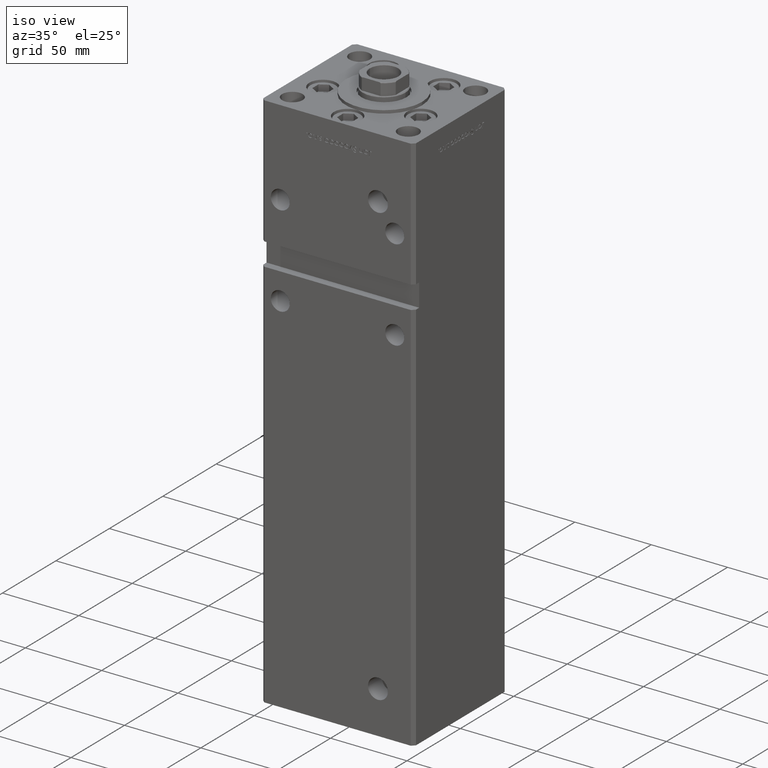
[diagram: clean part render]
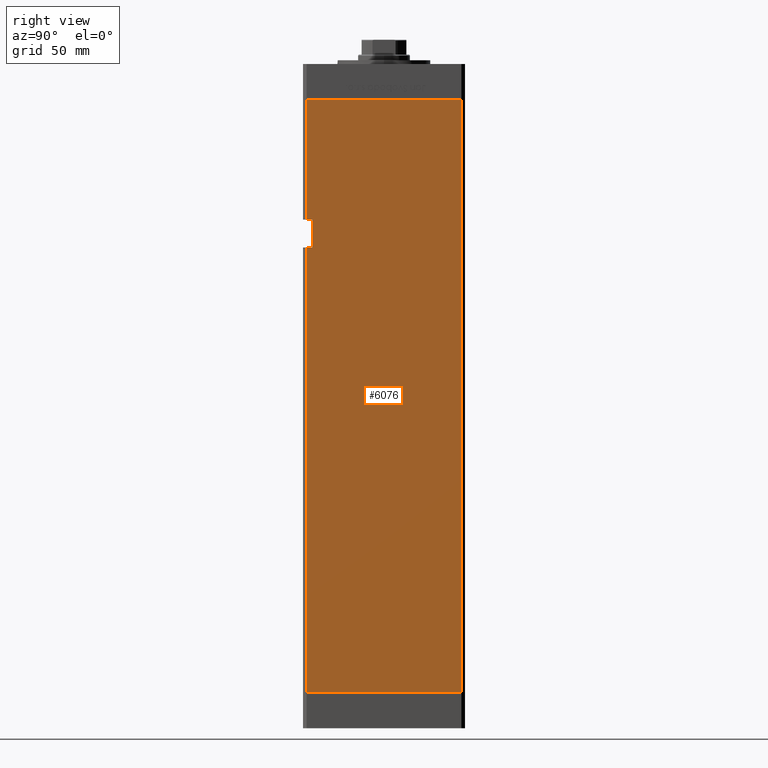
[diagram: tour spotlight — one face highlighted and labeled with its STEP entity id]
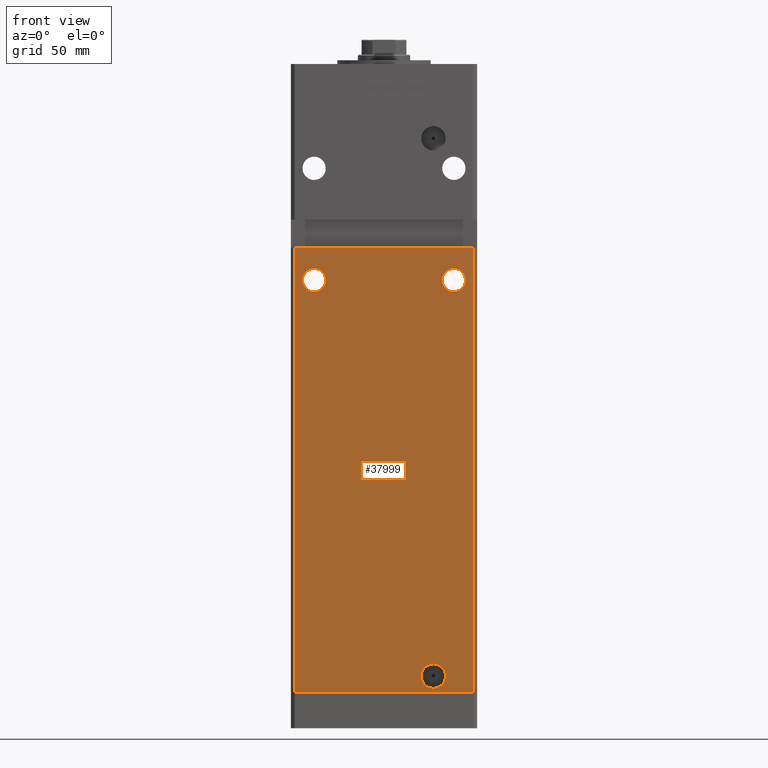
[diagram: tour spotlight — one face highlighted and labeled with its STEP entity id]
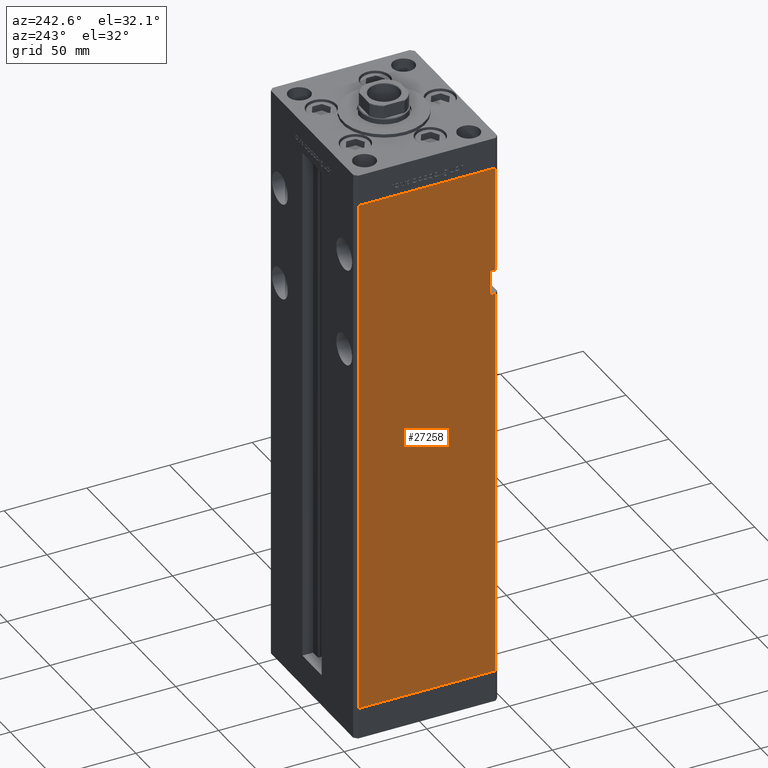
[diagram: tour spotlight — one face highlighted and labeled with its STEP entity id]
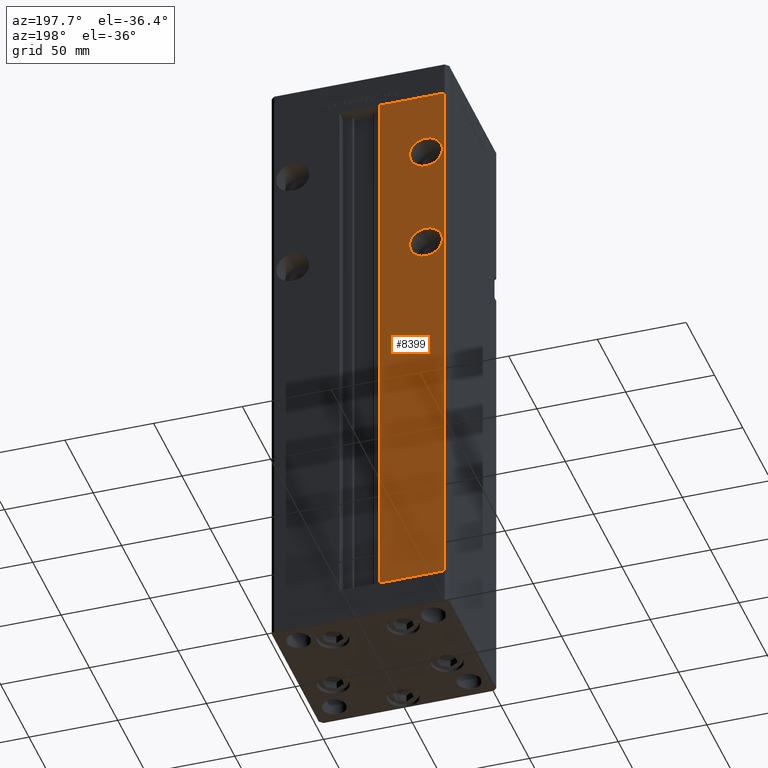
[diagram: tour spotlight — one face highlighted and labeled with its STEP entity id]
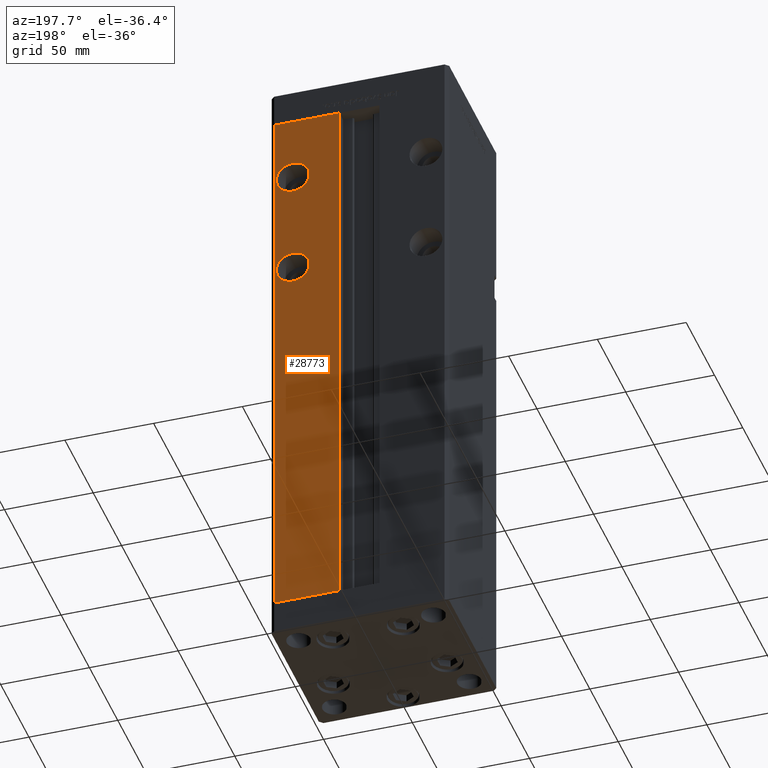
[diagram: tour spotlight — one face highlighted and labeled with its STEP entity id]
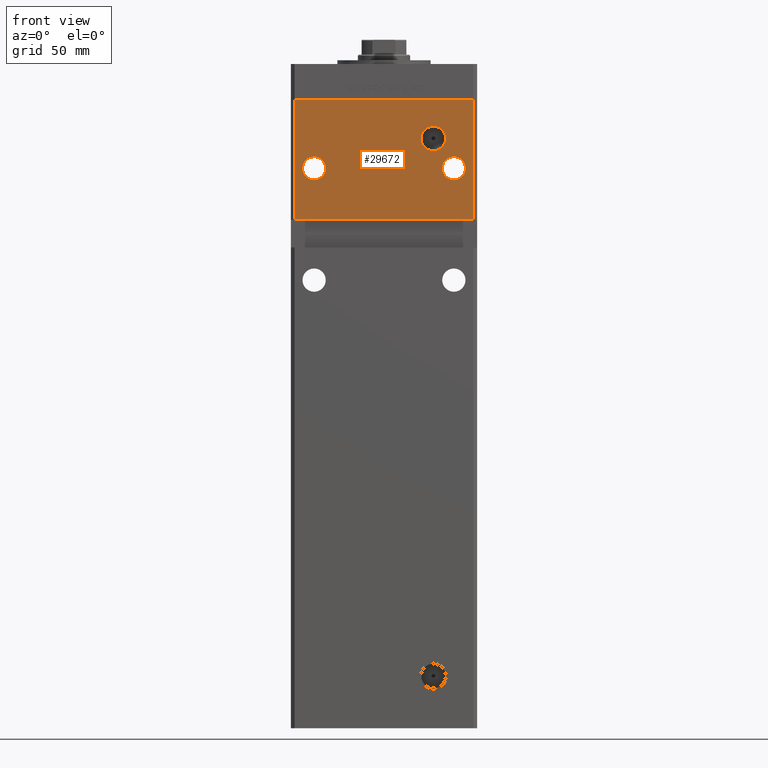
[diagram: tour spotlight — one face highlighted and labeled with its STEP entity id]
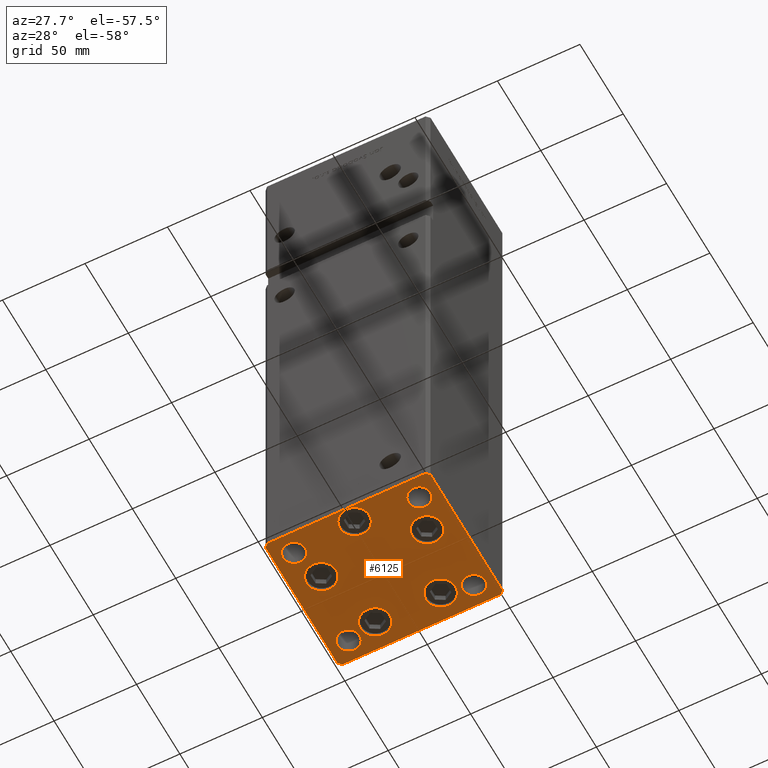
[diagram: tour spotlight — one face highlighted and labeled with its STEP entity id]
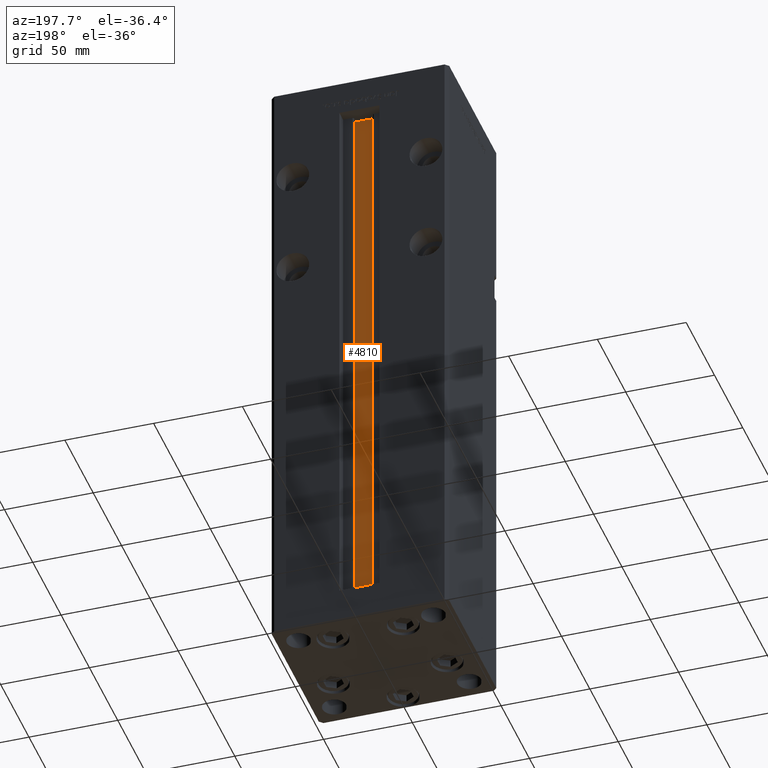
[diagram: tour spotlight — one face highlighted and labeled with its STEP entity id]
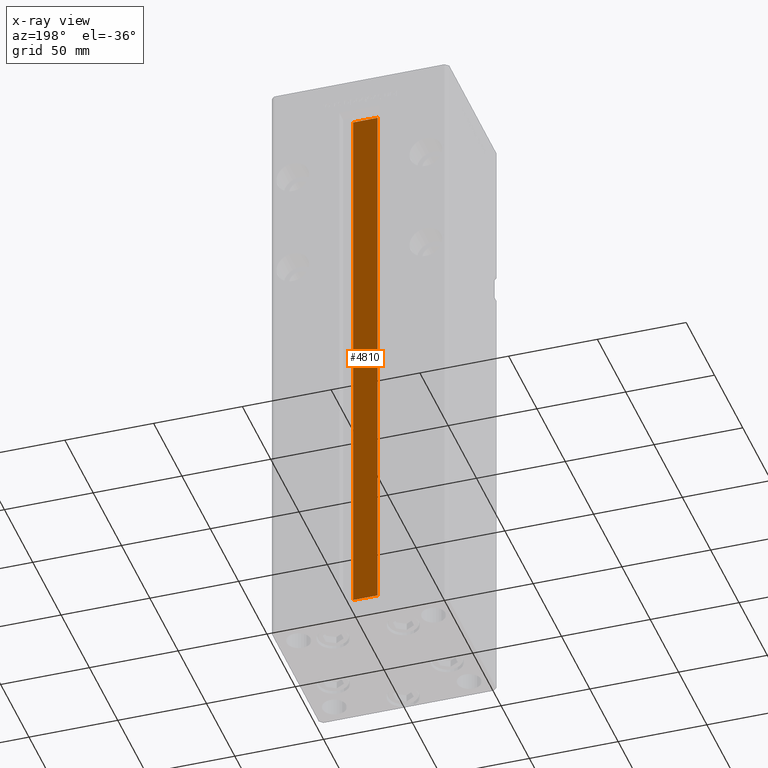
[diagram: x-ray of the same camera — body ghosted, this tour face saturated]
A machine part: a face-by-face anatomy tour. The part has 1214 B-rep faces; the first image is the clean iso view, then the 8 largest visible faces are spotlighted one at a time (largest first), each with its STEP entity span.

Face 1 — right view, entity #6076. In plain terms, the highlighted planar face has unit normal (1, -0, 0).
Definition (entity closure, byte-faithful):
#505 = PLANE ( 'NONE',  #24912 ) ;
#867 = EDGE_CURVE ( 'NONE', #3304, #41042, #43381, .T. ) ;
#1398 = CARTESIAN_POINT ( 'NONE',  ( 49.99999999999998579, -41.49999999999999289, 0.000000000000000000 ) ) ;
#2542 = CARTESIAN_POINT ( 'NONE',  ( 49.99999999999998579, -41.49999999999999289, 318.5000000000000000 ) ) ;
#2889 = CARTESIAN_POINT ( 'NONE',  ( 50.00000000000001421, 41.49999999999999289, 0.000000000000000000 ) ) ;
#3304 = VERTEX_POINT ( 'NONE', #7158 ) ;
#3412 = CARTESIAN_POINT ( 'NONE',  ( 49.99999999999998579, -38.49999999999999289, 239.0000000000000000 ) ) ;
#4271 = DIRECTION ( 'NONE',  ( 1.000000000000000000, -3.344045254895050480E-16, 0.000000000000000000 ) ) ;
#4644 = ORIENTED_EDGE ( 'NONE', *, *, #4862, .F. ) ;
#4767 = VERTEX_POINT ( 'NONE', #3412 ) ;
#4777 = LINE ( 'NONE', #17149, #47689 ) ;
#4862 = EDGE_CURVE ( 'NONE', #4767, #28666, #32970, .T. ) ;
#6076 = ADVANCED_FACE ( 'NONE', ( #25488 ), #505, .T. ) ;
#7158 = CARTESIAN_POINT ( 'NONE',  ( 49.99999999999998579, -41.49999999999999289, 239.0000000000000000 ) ) ;
#8305 = CARTESIAN_POINT ( 'NONE',  ( 50.00000000000001421, 41.49999999999999289, 318.5000000000000000 ) ) ;
#8763 = DIRECTION ( 'NONE',  ( -3.344045254895050973E-16, -1.000000000000000000, 0.000000000000000000 ) ) ;
#9832 = CARTESIAN_POINT ( 'NONE',  ( 49.99999999999998579, -41.49999999999999289, 318.5000000000000000 ) ) ;
#10166 = EDGE_CURVE ( 'NONE', #43146, #41042, #10167, .T. ) ;
#10167 = LINE ( 'NONE', #2889, #22452 ) ;
#10382 = EDGE_CURVE ( 'NONE', #4767, #3304, #49875, .T. ) ;
#10447 = VECTOR ( 'NONE', #25965, 1000.000000000000000 ) ;
#10857 = CARTESIAN_POINT ( 'NONE',  ( 50.00000000000001421, 41.49999999999999289, 318.5000000000000000 ) ) ;
#11188 = EDGE_CURVE ( 'NONE', #28829, #43146, #13343, .T. ) ;
#12329 = DIRECTION ( 'NONE',  ( -0.000000000000000000, -0.000000000000000000, -1.000000000000000000 ) ) ;
#13343 = LINE ( 'NONE', #41808, #10447 ) ;
#14707 = ORIENTED_EDGE ( 'NONE', *, *, #10382, .T. ) ;
#16044 = LINE ( 'NONE', #21118, #40497 ) ;
#17127 = VECTOR ( 'NONE', #46093, 1000.000000000000000 ) ;
#17149 = CARTESIAN_POINT ( 'NONE',  ( 49.99999999999998579, -41.49999999999999289, 318.5000000000000000 ) ) ;
#21118 = CARTESIAN_POINT ( 'NONE',  ( 50.00000000000001421, 41.49999999999999289, 318.5000000000000000 ) ) ;
#21226 = CARTESIAN_POINT ( 'NONE',  ( 49.99999999999998579, -38.50000000000000000, 254.0000000000000000 ) ) ;
#21288 = ORIENTED_EDGE ( 'NONE', *, *, #11188, .F. ) ;
#22452 = VECTOR ( 'NONE', #47220, 1000.000000000000000 ) ;
#23815 = ORIENTED_EDGE ( 'NONE', *, *, #27201, .T. ) ;
#24211 = ORIENTED_EDGE ( 'NONE', *, *, #29257, .F. ) ;
#24895 = CARTESIAN_POINT ( 'NONE',  ( 49.99999999999998579, -38.50000000000000000, 254.0000000000000000 ) ) ;
#24912 = AXIS2_PLACEMENT_3D ( 'NONE', #8305, #4271, #49419 ) ;
#25026 = VECTOR ( 'NONE', #45838, 1000.000000000000000 ) ;
#25488 = FACE_OUTER_BOUND ( 'NONE', #40302, .T. ) ;
#25965 = DIRECTION ( 'NONE',  ( -0.000000000000000000, -0.000000000000000000, -1.000000000000000000 ) ) ;
#26433 = ORIENTED_EDGE ( 'NONE', *, *, #34954, .T. ) ;
#27201 = EDGE_CURVE ( 'NONE', #41253, #50627, #4777, .T. ) ;
#28033 = ORIENTED_EDGE ( 'NONE', *, *, #867, .T. ) ;
#28322 = ORIENTED_EDGE ( 'NONE', *, *, #10166, .F. ) ;
#28666 = VERTEX_POINT ( 'NONE', #28958 ) ;
#28829 = VERTEX_POINT ( 'NONE', #10857 ) ;
#28958 = CARTESIAN_POINT ( 'NONE',  ( 49.99999999999998579, -38.50000000000000000, 254.0000000000000000 ) ) ;
#29257 = EDGE_CURVE ( 'NONE', #28666, #50627, #33318, .T. ) ;
#29458 = CARTESIAN_POINT ( 'NONE',  ( 49.99999999999998579, -38.50000000000000000, 239.0000000000000000 ) ) ;
#32970 = LINE ( 'NONE', #24895, #17127 ) ;
#33318 = LINE ( 'NONE', #21226, #52214 ) ;
#34954 = EDGE_CURVE ( 'NONE', #28829, #41253, #16044, .T. ) ;
#39560 = CARTESIAN_POINT ( 'NONE',  ( 49.99999999999998579, -41.49999999999999289, 254.0000000000000000 ) ) ;
#40112 = CARTESIAN_POINT ( 'NONE',  ( 50.00000000000001421, 41.49999999999999289, 0.000000000000000000 ) ) ;
#40302 = EDGE_LOOP ( 'NONE', ( #14707, #28033, #28322, #21288, #26433, #23815, #24211, #4644 ) ) ;
#40497 = VECTOR ( 'NONE', #8763, 1000.000000000000000 ) ;
#41042 = VERTEX_POINT ( 'NONE', #1398 ) ;
#41253 = VERTEX_POINT ( 'NONE', #2542 ) ;
#41808 = CARTESIAN_POINT ( 'NONE',  ( 50.00000000000001421, 41.49999999999999289, 318.5000000000000000 ) ) ;
#43146 = VERTEX_POINT ( 'NONE', #40112 ) ;
#43381 = LINE ( 'NONE', #9832, #50504 ) ;
#45838 = DIRECTION ( 'NONE',  ( -0.000000000000000000, -1.000000000000000000, -0.000000000000000000 ) ) ;
#46093 = DIRECTION ( 'NONE',  ( -0.000000000000000000, -0.000000000000000000, 1.000000000000000000 ) ) ;
#47220 = DIRECTION ( 'NONE',  ( -3.344045254895050973E-16, -1.000000000000000000, 0.000000000000000000 ) ) ;
#47689 = VECTOR ( 'NONE', #12329, 1000.000000000000000 ) ;
#47693 = DIRECTION ( 'NONE',  ( -0.000000000000000000, -0.000000000000000000, -1.000000000000000000 ) ) ;
#49419 = DIRECTION ( 'NONE',  ( 3.344045254895050480E-16, 1.000000000000000000, 0.000000000000000000 ) ) ;
#49708 = DIRECTION ( 'NONE',  ( -0.000000000000000000, -1.000000000000000000, -0.000000000000000000 ) ) ;
#49875 = LINE ( 'NONE', #29458, #25026 ) ;
#50504 = VECTOR ( 'NONE', #47693, 1000.000000000000000 ) ;
#50627 = VERTEX_POINT ( 'NONE', #39560 ) ;
#52214 = VECTOR ( 'NONE', #49708, 1000.000000000000000 ) ;

Face 2 — front view, entity #37999. In plain terms, the highlighted planar face has unit normal (0, 1, 0).
Definition (entity closure, byte-faithful):
#935 = ORIENTED_EDGE ( 'NONE', *, *, #2933, .T. ) ;
#1249 = CARTESIAN_POINT ( 'NONE',  ( 37.50000000000000000, -43.50000000000000000, 215.2500000000000000 ) ) ;
#1787 = VERTEX_POINT ( 'NONE', #18893 ) ;
#2030 = DIRECTION ( 'NONE',  ( 0.000000000000000000, 1.000000000000000000, 0.000000000000000000 ) ) ;
#2165 = VERTEX_POINT ( 'NONE', #37329 ) ;
#2689 = LINE ( 'NONE', #19103, #23116 ) ;
#2933 = EDGE_CURVE ( 'NONE', #1787, #48644, #2689, .T. ) ;
#3046 = CARTESIAN_POINT ( 'NONE',  ( -37.50000000000000000, -43.50000000000000000, 215.2500000000000000 ) ) ;
#4251 = DIRECTION ( 'NONE',  ( 0.000000000000000000, 0.000000000000000000, -1.000000000000000000 ) ) ;
#5026 = DIRECTION ( 'NONE',  ( 0.000000000000000000, 1.000000000000000000, 0.000000000000000000 ) ) ;
#5694 = CARTESIAN_POINT ( 'NONE',  ( 26.49999999999998934, -43.50000000000000000, 2.420000000000013252 ) ) ;
#6533 = ORIENTED_EDGE ( 'NONE', *, *, #50691, .F. ) ;
#6595 = DIRECTION ( 'NONE',  ( 0.000000000000000000, 0.000000000000000000, 1.000000000000000000 ) ) ;
#7153 = CARTESIAN_POINT ( 'NONE',  ( -47.99999999999998579, -43.50000000000000000, 0.000000000000000000 ) ) ;
#7755 = VERTEX_POINT ( 'NONE', #8392 ) ;
#8288 = DIRECTION ( 'NONE',  ( 0.000000000000000000, -1.000000000000000000, 0.000000000000000000 ) ) ;
#8355 = ORIENTED_EDGE ( 'NONE', *, *, #37942, .T. ) ;
#8392 = CARTESIAN_POINT ( 'NONE',  ( 26.49999999999998934, -43.50000000000000000, 15.58000000000000362 ) ) ;
#8604 = EDGE_LOOP ( 'NONE', ( #29045, #28761 ) ) ;
#8907 = LINE ( 'NONE', #34153, #48264 ) ;
#9035 = ORIENTED_EDGE ( 'NONE', *, *, #36490, .F. ) ;
#9578 = FACE_BOUND ( 'NONE', #33855, .T. ) ;
#9601 = DIRECTION ( 'NONE',  ( 0.000000000000000000, 0.000000000000000000, 1.000000000000000000 ) ) ;
#10372 = FACE_OUTER_BOUND ( 'NONE', #22430, .T. ) ;
#10564 = CARTESIAN_POINT ( 'NONE',  ( -37.50000000000000000, -43.50000000000000000, 227.7500000000000000 ) ) ;
#10645 = DIRECTION ( 'NONE',  ( 0.000000000000000000, 1.000000000000000000, 0.000000000000000000 ) ) ;
#14884 = AXIS2_PLACEMENT_3D ( 'NONE', #38326, #2030, #6595 ) ;
#17940 = CARTESIAN_POINT ( 'NONE',  ( 37.50000000000000000, -43.50000000000000000, 221.5000000000000000 ) ) ;
#18893 = CARTESIAN_POINT ( 'NONE',  ( -47.99999999999998579, -43.50000000000000000, 239.0000000000000000 ) ) ;
#18971 = DIRECTION ( 'NONE',  ( 0.000000000000000000, -0.000000000000000000, 1.000000000000000000 ) ) ;
#19103 = CARTESIAN_POINT ( 'NONE',  ( -47.99999999999998579, -43.50000000000000000, 318.5000000000000000 ) ) ;
#19188 = CIRCLE ( 'NONE', #14884, 6.250000000000005329 ) ;
#20266 = ORIENTED_EDGE ( 'NONE', *, *, #51435, .T. ) ;
#20447 = ORIENTED_EDGE ( 'NONE', *, *, #26398, .T. ) ;
#21126 = CIRCLE ( 'NONE', #34863, 6.250000000000005329 ) ;
#22430 = EDGE_LOOP ( 'NONE', ( #6533, #9035, #935, #36963 ) ) ;
#23116 = VECTOR ( 'NONE', #44069, 1000.000000000000000 ) ;
#23785 = CARTESIAN_POINT ( 'NONE',  ( 47.99999999999998579, -43.50000000000000000, 239.0000000000000000 ) ) ;
#24277 = DIRECTION ( 'NONE',  ( 0.000000000000000000, 1.000000000000000000, 0.000000000000000000 ) ) ;
#24767 = CARTESIAN_POINT ( 'NONE',  ( 47.99999999999998579, -43.50000000000000000, 318.5000000000000000 ) ) ;
#25681 = EDGE_CURVE ( 'NONE', #36261, #25704, #36491, .T. ) ;
#25704 = VERTEX_POINT ( 'NONE', #3046 ) ;
#25854 = VERTEX_POINT ( 'NONE', #40323 ) ;
#26398 = EDGE_CURVE ( 'NONE', #42739, #2165, #39975, .T. ) ;
#27087 = CIRCLE ( 'NONE', #51993, 6.579999999999994742 ) ;
#27259 = EDGE_CURVE ( 'NONE', #52517, #7755, #27087, .T. ) ;
#28545 = VECTOR ( 'NONE', #47726, 1000.000000000000000 ) ;
#28761 = ORIENTED_EDGE ( 'NONE', *, *, #32069, .F. ) ;
#28806 = DIRECTION ( 'NONE',  ( -0.000000000000000000, -0.000000000000000000, -1.000000000000000000 ) ) ;
#29045 = ORIENTED_EDGE ( 'NONE', *, *, #27259, .F. ) ;
#30515 = AXIS2_PLACEMENT_3D ( 'NONE', #44153, #24277, #40649 ) ;
#30535 = CARTESIAN_POINT ( 'NONE',  ( 37.50000000000000000, -43.50000000000000000, 221.5000000000000000 ) ) ;
#32069 = EDGE_CURVE ( 'NONE', #7755, #52517, #37849, .T. ) ;
#33138 = EDGE_LOOP ( 'NONE', ( #20266, #20447 ) ) ;
#33352 = DIRECTION ( 'NONE',  ( 1.000000000000000000, 0.000000000000000000, 0.000000000000000000 ) ) ;
#33855 = EDGE_LOOP ( 'NONE', ( #35848, #8355 ) ) ;
#34023 = VECTOR ( 'NONE', #28806, 1000.000000000000000 ) ;
#34153 = CARTESIAN_POINT ( 'NONE',  ( -49.99999999999998579, -43.50000000000000000, 239.0000000000000000 ) ) ;
#34863 = AXIS2_PLACEMENT_3D ( 'NONE', #30535, #38849, #46912 ) ;
#35091 = PLANE ( 'NONE',  #37208 ) ;
#35848 = ORIENTED_EDGE ( 'NONE', *, *, #25681, .T. ) ;
#36002 = DIRECTION ( 'NONE',  ( 0.000000000000000000, 0.000000000000000000, -1.000000000000000000 ) ) ;
#36261 = VERTEX_POINT ( 'NONE', #10564 ) ;
#36490 = EDGE_CURVE ( 'NONE', #1787, #41371, #8907, .T. ) ;
#36491 = CIRCLE ( 'NONE', #30515, 6.250000000000005329 ) ;
#36963 = ORIENTED_EDGE ( 'NONE', *, *, #39855, .T. ) ;
#37208 = AXIS2_PLACEMENT_3D ( 'NONE', #47177, #10645, #18971 ) ;
#37329 = CARTESIAN_POINT ( 'NONE',  ( 37.50000000000000000, -43.50000000000000000, 227.7500000000000000 ) ) ;
#37849 = CIRCLE ( 'NONE', #41258, 6.579999999999994742 ) ;
#37942 = EDGE_CURVE ( 'NONE', #25704, #36261, #19188, .T. ) ;
#37999 = ADVANCED_FACE ( 'NONE', ( #9578, #42340, #38588, #10372 ), #35091, .F. ) ;
#38248 = AXIS2_PLACEMENT_3D ( 'NONE', #17940, #5026, #9601 ) ;
#38326 = CARTESIAN_POINT ( 'NONE',  ( -37.50000000000000000, -43.50000000000000000, 221.5000000000000000 ) ) ;
#38588 = FACE_BOUND ( 'NONE', #8604, .T. ) ;
#38849 = DIRECTION ( 'NONE',  ( 0.000000000000000000, 1.000000000000000000, 0.000000000000000000 ) ) ;
#39855 = EDGE_CURVE ( 'NONE', #48644, #25854, #43948, .T. ) ;
#39975 = CIRCLE ( 'NONE', #38248, 6.250000000000005329 ) ;
#40323 = CARTESIAN_POINT ( 'NONE',  ( 47.99999999999998579, -43.50000000000000000, 0.000000000000000000 ) ) ;
#40649 = DIRECTION ( 'NONE',  ( 0.000000000000000000, 0.000000000000000000, 1.000000000000000000 ) ) ;
#41258 = AXIS2_PLACEMENT_3D ( 'NONE', #43255, #48365, #36002 ) ;
#41371 = VERTEX_POINT ( 'NONE', #23785 ) ;
#42340 = FACE_BOUND ( 'NONE', #33138, .T. ) ;
#42739 = VERTEX_POINT ( 'NONE', #1249 ) ;
#43255 = CARTESIAN_POINT ( 'NONE',  ( 26.49999999999998934, -43.50000000000000000, 9.000000000000007105 ) ) ;
#43948 = LINE ( 'NONE', #52035, #28545 ) ;
#44069 = DIRECTION ( 'NONE',  ( -0.000000000000000000, -0.000000000000000000, -1.000000000000000000 ) ) ;
#44153 = CARTESIAN_POINT ( 'NONE',  ( -37.50000000000000000, -43.50000000000000000, 221.5000000000000000 ) ) ;
#45095 = CARTESIAN_POINT ( 'NONE',  ( 26.49999999999998934, -43.50000000000000000, 9.000000000000007105 ) ) ;
#45182 = LINE ( 'NONE', #24767, #34023 ) ;
#46912 = DIRECTION ( 'NONE',  ( 0.000000000000000000, 0.000000000000000000, 1.000000000000000000 ) ) ;
#47177 = CARTESIAN_POINT ( 'NONE',  ( -47.99999999999998579, -43.50000000000000000, 318.5000000000000000 ) ) ;
#47726 = DIRECTION ( 'NONE',  ( 1.000000000000000000, 0.000000000000000000, 0.000000000000000000 ) ) ;
#48264 = VECTOR ( 'NONE', #33352, 1000.000000000000000 ) ;
#48365 = DIRECTION ( 'NONE',  ( 0.000000000000000000, -1.000000000000000000, 0.000000000000000000 ) ) ;
#48644 = VERTEX_POINT ( 'NONE', #7153 ) ;
#50691 = EDGE_CURVE ( 'NONE', #41371, #25854, #45182, .T. ) ;
#51435 = EDGE_CURVE ( 'NONE', #2165, #42739, #21126, .T. ) ;
#51993 = AXIS2_PLACEMENT_3D ( 'NONE', #45095, #8288, #4251 ) ;
#52035 = CARTESIAN_POINT ( 'NONE',  ( -47.99999999999998579, -43.50000000000000000, 0.000000000000000000 ) ) ;
#52517 = VERTEX_POINT ( 'NONE', #5694 ) ;

Face 3 — auxiliary view, entity #27258. In plain terms, the highlighted planar face has unit normal (1, 0, 0).
Definition (entity closure, byte-faithful):
#1592 = EDGE_LOOP ( 'NONE', ( #45518, #11334, #26921, #44942, #20288, #51683, #12537, #24270 ) ) ;
#2064 = VECTOR ( 'NONE', #29372, 1000.000000000000000 ) ;
#2583 = DIRECTION ( 'NONE',  ( 3.344045254895050973E-16, -1.000000000000000000, 0.000000000000000000 ) ) ;
#2839 = VERTEX_POINT ( 'NONE', #6191 ) ;
#3608 = DIRECTION ( 'NONE',  ( -0.000000000000000000, -0.000000000000000000, -1.000000000000000000 ) ) ;
#3637 = CARTESIAN_POINT ( 'NONE',  ( -49.99999999999998579, -38.50000000000000000, 254.0000000000000000 ) ) ;
#3813 = LINE ( 'NONE', #39830, #41383 ) ;
#6191 = CARTESIAN_POINT ( 'NONE',  ( -50.00000000000001421, 41.49999999999999289, 318.5000000000000000 ) ) ;
#6299 = VERTEX_POINT ( 'NONE', #31915 ) ;
#9020 = CARTESIAN_POINT ( 'NONE',  ( -49.99999999999998579, -41.49999999999999289, 0.000000000000000000 ) ) ;
#11334 = ORIENTED_EDGE ( 'NONE', *, *, #21938, .F. ) ;
#11865 = CARTESIAN_POINT ( 'NONE',  ( -50.00000000000001421, 41.49999999999999289, 318.5000000000000000 ) ) ;
#12064 = PLANE ( 'NONE',  #31390 ) ;
#12233 = CARTESIAN_POINT ( 'NONE',  ( -49.99999999999998579, -38.50000000000000000, 254.0000000000000000 ) ) ;
#12537 = ORIENTED_EDGE ( 'NONE', *, *, #14291, .T. ) ;
#12961 = CARTESIAN_POINT ( 'NONE',  ( -49.99999999999998579, -38.50000000000000000, 239.0000000000000000 ) ) ;
#13134 = LINE ( 'NONE', #37837, #33687 ) ;
#14291 = EDGE_CURVE ( 'NONE', #2839, #48671, #48667, .T. ) ;
#14740 = VECTOR ( 'NONE', #3608, 1000.000000000000000 ) ;
#15718 = LINE ( 'NONE', #28069, #14740 ) ;
#15749 = LINE ( 'NONE', #3637, #51076 ) ;
#15808 = EDGE_CURVE ( 'NONE', #51073, #46313, #15718, .T. ) ;
#16024 = LINE ( 'NONE', #48803, #27926 ) ;
#16258 = LINE ( 'NONE', #12233, #49236 ) ;
#17979 = EDGE_CURVE ( 'NONE', #37097, #44692, #3813, .T. ) ;
#18346 = EDGE_CURVE ( 'NONE', #2839, #37097, #13134, .T. ) ;
#19866 = EDGE_CURVE ( 'NONE', #6299, #48196, #16258, .T. ) ;
#20041 = DIRECTION ( 'NONE',  ( -0.000000000000000000, -1.000000000000000000, -0.000000000000000000 ) ) ;
#20288 = ORIENTED_EDGE ( 'NONE', *, *, #17979, .F. ) ;
#20392 = DIRECTION ( 'NONE',  ( -3.344045254895050480E-16, 1.000000000000000000, 0.000000000000000000 ) ) ;
#20669 = DIRECTION ( 'NONE',  ( 3.344045254895050973E-16, -1.000000000000000000, 0.000000000000000000 ) ) ;
#21938 = EDGE_CURVE ( 'NONE', #48196, #51073, #42242, .T. ) ;
#22404 = VECTOR ( 'NONE', #28248, 1000.000000000000000 ) ;
#24270 = ORIENTED_EDGE ( 'NONE', *, *, #48746, .T. ) ;
#24422 = EDGE_CURVE ( 'NONE', #6299, #44692, #15749, .T. ) ;
#26921 = ORIENTED_EDGE ( 'NONE', *, *, #19866, .F. ) ;
#27258 = ADVANCED_FACE ( 'NONE', ( #53181 ), #12064, .F. ) ;
#27926 = VECTOR ( 'NONE', #2583, 1000.000000000000000 ) ;
#28069 = CARTESIAN_POINT ( 'NONE',  ( -49.99999999999998579, -41.49999999999999289, 318.5000000000000000 ) ) ;
#28248 = DIRECTION ( 'NONE',  ( -0.000000000000000000, -0.000000000000000000, -1.000000000000000000 ) ) ;
#29372 = DIRECTION ( 'NONE',  ( -0.000000000000000000, -1.000000000000000000, -0.000000000000000000 ) ) ;
#31390 = AXIS2_PLACEMENT_3D ( 'NONE', #41062, #33525, #20392 ) ;
#31915 = CARTESIAN_POINT ( 'NONE',  ( -49.99999999999998579, -38.50000000000000000, 254.0000000000000000 ) ) ;
#33525 = DIRECTION ( 'NONE',  ( 1.000000000000000000, 3.344045254895050480E-16, -0.000000000000000000 ) ) ;
#33687 = VECTOR ( 'NONE', #20669, 1000.000000000000000 ) ;
#35890 = DIRECTION ( 'NONE',  ( 0.000000000000000000, 0.000000000000000000, -1.000000000000000000 ) ) ;
#36067 = DIRECTION ( 'NONE',  ( -0.000000000000000000, -0.000000000000000000, -1.000000000000000000 ) ) ;
#37097 = VERTEX_POINT ( 'NONE', #51951 ) ;
#37837 = CARTESIAN_POINT ( 'NONE',  ( -50.00000000000001421, 41.49999999999999289, 318.5000000000000000 ) ) ;
#37961 = CARTESIAN_POINT ( 'NONE',  ( -49.99999999999998579, -38.50000000000000000, 239.0000000000000000 ) ) ;
#39830 = CARTESIAN_POINT ( 'NONE',  ( -49.99999999999998579, -41.49999999999999289, 318.5000000000000000 ) ) ;
#41062 = CARTESIAN_POINT ( 'NONE',  ( -50.00000000000001421, 41.49999999999999289, 318.5000000000000000 ) ) ;
#41383 = VECTOR ( 'NONE', #36067, 1000.000000000000000 ) ;
#42242 = LINE ( 'NONE', #37961, #2064 ) ;
#44692 = VERTEX_POINT ( 'NONE', #48398 ) ;
#44942 = ORIENTED_EDGE ( 'NONE', *, *, #24422, .T. ) ;
#45518 = ORIENTED_EDGE ( 'NONE', *, *, #15808, .F. ) ;
#46313 = VERTEX_POINT ( 'NONE', #9020 ) ;
#48006 = CARTESIAN_POINT ( 'NONE',  ( -50.00000000000001421, 41.49999999999999289, 0.000000000000000000 ) ) ;
#48196 = VERTEX_POINT ( 'NONE', #12961 ) ;
#48398 = CARTESIAN_POINT ( 'NONE',  ( -49.99999999999998579, -41.49999999999999289, 254.0000000000000000 ) ) ;
#48667 = LINE ( 'NONE', #11865, #22404 ) ;
#48671 = VERTEX_POINT ( 'NONE', #48006 ) ;
#48746 = EDGE_CURVE ( 'NONE', #48671, #46313, #16024, .T. ) ;
#48803 = CARTESIAN_POINT ( 'NONE',  ( -50.00000000000001421, 41.49999999999999289, 0.000000000000000000 ) ) ;
#49236 = VECTOR ( 'NONE', #35890, 1000.000000000000000 ) ;
#49680 = CARTESIAN_POINT ( 'NONE',  ( -49.99999999999998579, -41.49999999999999289, 239.0000000000000000 ) ) ;
#51073 = VERTEX_POINT ( 'NONE', #49680 ) ;
#51076 = VECTOR ( 'NONE', #20041, 1000.000000000000000 ) ;
#51683 = ORIENTED_EDGE ( 'NONE', *, *, #18346, .F. ) ;
#51951 = CARTESIAN_POINT ( 'NONE',  ( -49.99999999999998579, -41.49999999999999289, 318.5000000000000000 ) ) ;
#53181 = FACE_OUTER_BOUND ( 'NONE', #1592, .T. ) ;

Face 4 — auxiliary view, entity #8399. In plain terms, the highlighted planar face has unit normal (0, -1, 0).
Definition (entity closure, byte-faithful):
#1865 = CIRCLE ( 'NONE', #39659, 9.249999999999980460 ) ;
#2199 = ORIENTED_EDGE ( 'NONE', *, *, #12757, .T. ) ;
#2788 = VECTOR ( 'NONE', #8695, 1000.000000000000000 ) ;
#3697 = CARTESIAN_POINT ( 'NONE',  ( -11.24999999999999645, 43.50000000000000000, 318.5000000000000000 ) ) ;
#3967 = FACE_OUTER_BOUND ( 'NONE', #37232, .T. ) ;
#4199 = EDGE_CURVE ( 'NONE', #28975, #38754, #21642, .T. ) ;
#4268 = CARTESIAN_POINT ( 'NONE',  ( -37.50000000000000000, 43.50000000000000000, 221.5000000000000000 ) ) ;
#6207 = CARTESIAN_POINT ( 'NONE',  ( -48.00000000000000711, 43.50000000000000000, 318.5000000000000000 ) ) ;
#6948 = DIRECTION ( 'NONE',  ( 0.000000000000000000, 0.000000000000000000, -1.000000000000000000 ) ) ;
#8399 = ADVANCED_FACE ( 'NONE', ( #40499, #28160, #3967 ), #32462, .F. ) ;
#8695 = DIRECTION ( 'NONE',  ( -0.000000000000000000, -0.000000000000000000, 1.000000000000000000 ) ) ;
#8831 = EDGE_CURVE ( 'NONE', #27337, #38754, #52454, .T. ) ;
#9055 = CARTESIAN_POINT ( 'NONE',  ( -37.50000000000000000, 43.50000000000000000, 230.7500000000000000 ) ) ;
#9497 = LINE ( 'NONE', #46029, #2788 ) ;
#9587 = CIRCLE ( 'NONE', #16463, 9.249999999999980460 ) ;
#9988 = EDGE_CURVE ( 'NONE', #45065, #38749, #50768, .T. ) ;
#11154 = VECTOR ( 'NONE', #38301, 1000.000000000000000 ) ;
#11615 = DIRECTION ( 'NONE',  ( -1.000000000000000000, 0.000000000000000000, 0.000000000000000000 ) ) ;
#12076 = DIRECTION ( 'NONE',  ( 0.000000000000000000, 0.000000000000000000, 1.000000000000000000 ) ) ;
#12107 = AXIS2_PLACEMENT_3D ( 'NONE', #3697, #24396, #24656 ) ;
#12666 = CARTESIAN_POINT ( 'NONE',  ( -11.24999999999999645, 43.50000000000000000, 0.000000000000000000 ) ) ;
#12681 = ORIENTED_EDGE ( 'NONE', *, *, #34001, .F. ) ;
#12757 = EDGE_CURVE ( 'NONE', #28975, #44540, #47138, .T. ) ;
#13443 = ORIENTED_EDGE ( 'NONE', *, *, #33765, .F. ) ;
#16463 = AXIS2_PLACEMENT_3D ( 'NONE', #23094, #43758, #6948 ) ;
#17659 = ORIENTED_EDGE ( 'NONE', *, *, #9988, .F. ) ;
#18167 = AXIS2_PLACEMENT_3D ( 'NONE', #4268, #19872, #12076 ) ;
#18198 = CARTESIAN_POINT ( 'NONE',  ( -37.50000000000000000, 43.50000000000000000, 272.2500000000000000 ) ) ;
#19872 = DIRECTION ( 'NONE',  ( 0.000000000000000000, 1.000000000000000000, 0.000000000000000000 ) ) ;
#21143 = CARTESIAN_POINT ( 'NONE',  ( -48.00000000000000711, 43.50000000000000000, 0.000000000000000000 ) ) ;
#21642 = LINE ( 'NONE', #47151, #11154 ) ;
#23094 = CARTESIAN_POINT ( 'NONE',  ( -37.50000000000000000, 43.50000000000000000, 281.5000000000000000 ) ) ;
#23131 = CARTESIAN_POINT ( 'NONE',  ( -11.24999999999999645, 43.50000000000000000, 0.000000000000000000 ) ) ;
#24115 = VECTOR ( 'NONE', #11615, 1000.000000000000000 ) ;
#24215 = AXIS2_PLACEMENT_3D ( 'NONE', #41259, #45043, #53128 ) ;
#24396 = DIRECTION ( 'NONE',  ( 0.000000000000000000, -1.000000000000000000, 0.000000000000000000 ) ) ;
#24656 = DIRECTION ( 'NONE',  ( 0.000000000000000000, -0.000000000000000000, -1.000000000000000000 ) ) ;
#26444 = VERTEX_POINT ( 'NONE', #18198 ) ;
#26723 = CARTESIAN_POINT ( 'NONE',  ( -11.24999999999999645, 43.50000000000000000, 318.5000000000000000 ) ) ;
#26991 = DIRECTION ( 'NONE',  ( 0.000000000000000000, 0.000000000000000000, -1.000000000000000000 ) ) ;
#27254 = DIRECTION ( 'NONE',  ( 0.000000000000000000, 1.000000000000000000, -0.000000000000000000 ) ) ;
#27337 = VERTEX_POINT ( 'NONE', #23131 ) ;
#28160 = FACE_BOUND ( 'NONE', #35464, .T. ) ;
#28975 = VERTEX_POINT ( 'NONE', #6207 ) ;
#31563 = DIRECTION ( 'NONE',  ( 1.000000000000000000, 0.000000000000000000, 0.000000000000000000 ) ) ;
#32462 = PLANE ( 'NONE',  #12107 ) ;
#33765 = EDGE_CURVE ( 'NONE', #35584, #26444, #9587, .T. ) ;
#34001 = EDGE_CURVE ( 'NONE', #26444, #35584, #1865, .T. ) ;
#34881 = CARTESIAN_POINT ( 'NONE',  ( -37.50000000000000000, 43.50000000000000000, 290.7499999999999432 ) ) ;
#34969 = EDGE_CURVE ( 'NONE', #38749, #45065, #47371, .T. ) ;
#35464 = EDGE_LOOP ( 'NONE', ( #40771, #17659 ) ) ;
#35584 = VERTEX_POINT ( 'NONE', #34881 ) ;
#36109 = EDGE_CURVE ( 'NONE', #27337, #44540, #9497, .T. ) ;
#37232 = EDGE_LOOP ( 'NONE', ( #2199, #49710, #50554, #46999 ) ) ;
#37352 = EDGE_LOOP ( 'NONE', ( #13443, #12681 ) ) ;
#38301 = DIRECTION ( 'NONE',  ( -0.000000000000000000, -0.000000000000000000, -1.000000000000000000 ) ) ;
#38749 = VERTEX_POINT ( 'NONE', #9055 ) ;
#38754 = VERTEX_POINT ( 'NONE', #21143 ) ;
#39659 = AXIS2_PLACEMENT_3D ( 'NONE', #47681, #27254, #26991 ) ;
#40499 = FACE_BOUND ( 'NONE', #37352, .T. ) ;
#40771 = ORIENTED_EDGE ( 'NONE', *, *, #34969, .F. ) ;
#41259 = CARTESIAN_POINT ( 'NONE',  ( -37.50000000000000000, 43.50000000000000000, 221.5000000000000000 ) ) ;
#43758 = DIRECTION ( 'NONE',  ( 0.000000000000000000, 1.000000000000000000, -0.000000000000000000 ) ) ;
#44540 = VERTEX_POINT ( 'NONE', #49517 ) ;
#45043 = DIRECTION ( 'NONE',  ( 0.000000000000000000, 1.000000000000000000, 0.000000000000000000 ) ) ;
#45065 = VERTEX_POINT ( 'NONE', #52907 ) ;
#46029 = CARTESIAN_POINT ( 'NONE',  ( -11.24999999999999645, 43.50000000000000000, 0.000000000000000000 ) ) ;
#46999 = ORIENTED_EDGE ( 'NONE', *, *, #4199, .F. ) ;
#47138 = LINE ( 'NONE', #26723, #47383 ) ;
#47151 = CARTESIAN_POINT ( 'NONE',  ( -48.00000000000000711, 43.50000000000000000, 318.5000000000000000 ) ) ;
#47371 = CIRCLE ( 'NONE', #24215, 9.250000000000008882 ) ;
#47383 = VECTOR ( 'NONE', #31563, 1000.000000000000000 ) ;
#47681 = CARTESIAN_POINT ( 'NONE',  ( -37.50000000000000000, 43.50000000000000000, 281.5000000000000000 ) ) ;
#49517 = CARTESIAN_POINT ( 'NONE',  ( -11.24999999999999645, 43.50000000000000000, 318.5000000000000000 ) ) ;
#49710 = ORIENTED_EDGE ( 'NONE', *, *, #36109, .F. ) ;
#50554 = ORIENTED_EDGE ( 'NONE', *, *, #8831, .T. ) ;
#50768 = CIRCLE ( 'NONE', #18167, 9.250000000000008882 ) ;
#52454 = LINE ( 'NONE', #12666, #24115 ) ;
#52907 = CARTESIAN_POINT ( 'NONE',  ( -37.50000000000000000, 43.50000000000000000, 212.2500000000000000 ) ) ;
#53128 = DIRECTION ( 'NONE',  ( 0.000000000000000000, 0.000000000000000000, 1.000000000000000000 ) ) ;

Face 5 — auxiliary view, entity #28773. In plain terms, the highlighted planar face has unit normal (0, -1, 0).
Definition (entity closure, byte-faithful):
#793 = LINE ( 'NONE', #41632, #32088 ) ;
#1333 = ORIENTED_EDGE ( 'NONE', *, *, #11704, .F. ) ;
#1653 = DIRECTION ( 'NONE',  ( 1.000000000000000000, 0.000000000000000000, 0.000000000000000000 ) ) ;
#2028 = CARTESIAN_POINT ( 'NONE',  ( 11.24999999999999645, 43.50000000000000000, 0.000000000000000000 ) ) ;
#2184 = LINE ( 'NONE', #37939, #49100 ) ;
#2695 = CARTESIAN_POINT ( 'NONE',  ( -11.24999999999999645, 43.50000000000000000, 0.000000000000000000 ) ) ;
#4176 = VERTEX_POINT ( 'NONE', #33741 ) ;
#4957 = AXIS2_PLACEMENT_3D ( 'NONE', #44146, #36091, #48454 ) ;
#6322 = LINE ( 'NONE', #2028, #38863 ) ;
#7671 = DIRECTION ( 'NONE',  ( 0.000000000000000000, 1.000000000000000000, -0.000000000000000000 ) ) ;
#11704 = EDGE_CURVE ( 'NONE', #24905, #48026, #39638, .T. ) ;
#11846 = LINE ( 'NONE', #2695, #44074 ) ;
#11863 = VERTEX_POINT ( 'NONE', #25001 ) ;
#13618 = FACE_BOUND ( 'NONE', #16016, .T. ) ;
#14054 = DIRECTION ( 'NONE',  ( 0.000000000000000000, 1.000000000000000000, 0.000000000000000000 ) ) ;
#14935 = DIRECTION ( 'NONE',  ( -0.000000000000000000, -0.000000000000000000, 1.000000000000000000 ) ) ;
#16016 = EDGE_LOOP ( 'NONE', ( #39980, #1333 ) ) ;
#17076 = EDGE_CURVE ( 'NONE', #48026, #24905, #50843, .T. ) ;
#17661 = FACE_BOUND ( 'NONE', #28701, .T. ) ;
#18875 = DIRECTION ( 'NONE',  ( 0.000000000000000000, 0.000000000000000000, 1.000000000000000000 ) ) ;
#18890 = EDGE_CURVE ( 'NONE', #28375, #11863, #6322, .T. ) ;
#19464 = AXIS2_PLACEMENT_3D ( 'NONE', #34790, #27512, #43890 ) ;
#19547 = ORIENTED_EDGE ( 'NONE', *, *, #21207, .T. ) ;
#20182 = CIRCLE ( 'NONE', #33070, 9.250000000000008882 ) ;
#20351 = EDGE_CURVE ( 'NONE', #36645, #28375, #11846, .T. ) ;
#21207 = EDGE_CURVE ( 'NONE', #34318, #36645, #793, .T. ) ;
#21267 = CIRCLE ( 'NONE', #19464, 9.250000000000008882 ) ;
#23744 = PLANE ( 'NONE',  #4957 ) ;
#24235 = CARTESIAN_POINT ( 'NONE',  ( 48.00000000000000711, 43.50000000000000000, 318.5000000000000000 ) ) ;
#24732 = DIRECTION ( 'NONE',  ( -0.000000000000000000, -0.000000000000000000, -1.000000000000000000 ) ) ;
#24905 = VERTEX_POINT ( 'NONE', #31739 ) ;
#25001 = CARTESIAN_POINT ( 'NONE',  ( 11.24999999999998934, 43.50000000000000000, 318.5000000000000000 ) ) ;
#25530 = ORIENTED_EDGE ( 'NONE', *, *, #46923, .F. ) ;
#25989 = ORIENTED_EDGE ( 'NONE', *, *, #40304, .T. ) ;
#27512 = DIRECTION ( 'NONE',  ( 0.000000000000000000, 1.000000000000000000, -0.000000000000000000 ) ) ;
#28375 = VERTEX_POINT ( 'NONE', #42138 ) ;
#28701 = EDGE_LOOP ( 'NONE', ( #36432, #25530 ) ) ;
#28773 = ADVANCED_FACE ( 'NONE', ( #17661, #13618, #30011 ), #23744, .F. ) ;
#30011 = FACE_OUTER_BOUND ( 'NONE', #36525, .T. ) ;
#30104 = EDGE_CURVE ( 'NONE', #4176, #30909, #21267, .T. ) ;
#30178 = CARTESIAN_POINT ( 'NONE',  ( 37.50000000000000000, 43.50000000000000000, 212.2500000000000000 ) ) ;
#30244 = AXIS2_PLACEMENT_3D ( 'NONE', #46552, #14054, #18875 ) ;
#30693 = DIRECTION ( 'NONE',  ( 0.000000000000000000, 1.000000000000000000, 0.000000000000000000 ) ) ;
#30909 = VERTEX_POINT ( 'NONE', #30178 ) ;
#31087 = ORIENTED_EDGE ( 'NONE', *, *, #18890, .T. ) ;
#31739 = CARTESIAN_POINT ( 'NONE',  ( 37.50000000000000000, 43.50000000000000000, 272.2500000000000000 ) ) ;
#31999 = DIRECTION ( 'NONE',  ( -1.000000000000000000, 0.000000000000000000, 0.000000000000000000 ) ) ;
#32088 = VECTOR ( 'NONE', #24732, 1000.000000000000000 ) ;
#32402 = CARTESIAN_POINT ( 'NONE',  ( 37.50000000000000000, 43.50000000000000000, 221.5000000000000000 ) ) ;
#33070 = AXIS2_PLACEMENT_3D ( 'NONE', #32402, #7671, #36692 ) ;
#33741 = CARTESIAN_POINT ( 'NONE',  ( 37.50000000000000000, 43.50000000000000000, 230.7500000000000000 ) ) ;
#34318 = VERTEX_POINT ( 'NONE', #24235 ) ;
#34790 = CARTESIAN_POINT ( 'NONE',  ( 37.50000000000000000, 43.50000000000000000, 221.5000000000000000 ) ) ;
#35574 = CARTESIAN_POINT ( 'NONE',  ( 37.50000000000000000, 43.50000000000000000, 290.7499999999999432 ) ) ;
#36091 = DIRECTION ( 'NONE',  ( 0.000000000000000000, -1.000000000000000000, 0.000000000000000000 ) ) ;
#36432 = ORIENTED_EDGE ( 'NONE', *, *, #30104, .F. ) ;
#36525 = EDGE_LOOP ( 'NONE', ( #42278, #31087, #25989, #19547 ) ) ;
#36645 = VERTEX_POINT ( 'NONE', #52941 ) ;
#36692 = DIRECTION ( 'NONE',  ( 0.000000000000000000, 0.000000000000000000, -1.000000000000000000 ) ) ;
#37939 = CARTESIAN_POINT ( 'NONE',  ( -11.24999999999999645, 43.50000000000000000, 318.5000000000000000 ) ) ;
#38863 = VECTOR ( 'NONE', #14935, 1000.000000000000000 ) ;
#39638 = CIRCLE ( 'NONE', #46496, 9.249999999999980460 ) ;
#39980 = ORIENTED_EDGE ( 'NONE', *, *, #17076, .F. ) ;
#40304 = EDGE_CURVE ( 'NONE', #11863, #34318, #2184, .T. ) ;
#41632 = CARTESIAN_POINT ( 'NONE',  ( 48.00000000000000711, 43.50000000000000000, 318.5000000000000000 ) ) ;
#42138 = CARTESIAN_POINT ( 'NONE',  ( 11.24999999999999645, 43.50000000000000000, 0.000000000000000000 ) ) ;
#42278 = ORIENTED_EDGE ( 'NONE', *, *, #20351, .T. ) ;
#42761 = CARTESIAN_POINT ( 'NONE',  ( 37.50000000000000000, 43.50000000000000000, 281.5000000000000000 ) ) ;
#43890 = DIRECTION ( 'NONE',  ( 0.000000000000000000, 0.000000000000000000, -1.000000000000000000 ) ) ;
#44074 = VECTOR ( 'NONE', #31999, 1000.000000000000000 ) ;
#44146 = CARTESIAN_POINT ( 'NONE',  ( -11.24999999999999645, 43.50000000000000000, 318.5000000000000000 ) ) ;
#46496 = AXIS2_PLACEMENT_3D ( 'NONE', #42761, #30693, #47063 ) ;
#46552 = CARTESIAN_POINT ( 'NONE',  ( 37.50000000000000000, 43.50000000000000000, 281.5000000000000000 ) ) ;
#46923 = EDGE_CURVE ( 'NONE', #30909, #4176, #20182, .T. ) ;
#47063 = DIRECTION ( 'NONE',  ( 0.000000000000000000, 0.000000000000000000, 1.000000000000000000 ) ) ;
#48026 = VERTEX_POINT ( 'NONE', #35574 ) ;
#48454 = DIRECTION ( 'NONE',  ( 0.000000000000000000, -0.000000000000000000, -1.000000000000000000 ) ) ;
#49100 = VECTOR ( 'NONE', #1653, 1000.000000000000000 ) ;
#50843 = CIRCLE ( 'NONE', #30244, 9.249999999999980460 ) ;
#52941 = CARTESIAN_POINT ( 'NONE',  ( 48.00000000000000711, 43.50000000000000000, 0.000000000000000000 ) ) ;

Face 6 — front view, entity #29672. In plain terms, the highlighted planar face has unit normal (0, 1, 0).
Definition (entity closure, byte-faithful):
#212 = PLANE ( 'NONE',  #9269 ) ;
#814 = VECTOR ( 'NONE', #26422, 1000.000000000000000 ) ;
#843 = CARTESIAN_POINT ( 'NONE',  ( 26.49999999999995381, -43.50000000000000000, 304.0799999999999841 ) ) ;
#1736 = ORIENTED_EDGE ( 'NONE', *, *, #10763, .T. ) ;
#1925 = VERTEX_POINT ( 'NONE', #20477 ) ;
#3325 = CARTESIAN_POINT ( 'NONE',  ( 26.49999999999995381, -43.50000000000000000, 290.9200000000000159 ) ) ;
#3847 = EDGE_CURVE ( 'NONE', #4704, #29187, #45420, .T. ) ;
#4704 = VERTEX_POINT ( 'NONE', #35131 ) ;
#5218 = EDGE_CURVE ( 'NONE', #13572, #52614, #25626, .T. ) ;
#5704 = EDGE_CURVE ( 'NONE', #13572, #1925, #22863, .T. ) ;
#5860 = LINE ( 'NONE', #10177, #44024 ) ;
#6896 = CIRCLE ( 'NONE', #48984, 6.249999999999977796 ) ;
#7493 = ORIENTED_EDGE ( 'NONE', *, *, #25801, .T. ) ;
#7752 = VERTEX_POINT ( 'NONE', #843 ) ;
#8815 = CARTESIAN_POINT ( 'NONE',  ( -37.50000000000000000, -43.50000000000000000, 281.5000000000000000 ) ) ;
#9076 = EDGE_LOOP ( 'NONE', ( #51514, #1736 ) ) ;
#9269 = AXIS2_PLACEMENT_3D ( 'NONE', #11793, #33251, #19841 ) ;
#9466 = CARTESIAN_POINT ( 'NONE',  ( 37.50000000000000000, -43.50000000000000000, 281.5000000000000000 ) ) ;
#9558 = CIRCLE ( 'NONE', #28428, 6.579999999999975202 ) ;
#10177 = CARTESIAN_POINT ( 'NONE',  ( -49.99999999999998579, -43.50000000000000000, 254.0000000000000000 ) ) ;
#10335 = ORIENTED_EDGE ( 'NONE', *, *, #3847, .T. ) ;
#10763 = EDGE_CURVE ( 'NONE', #7752, #48988, #40474, .T. ) ;
#10769 = DIRECTION ( 'NONE',  ( -0.000000000000000000, 1.000000000000000000, -0.000000000000000000 ) ) ;
#11420 = EDGE_LOOP ( 'NONE', ( #17782, #10335 ) ) ;
#11793 = CARTESIAN_POINT ( 'NONE',  ( -47.99999999999998579, -43.50000000000000000, 318.5000000000000000 ) ) ;
#12015 = DIRECTION ( 'NONE',  ( -0.000000000000000000, 1.000000000000000000, -0.000000000000000000 ) ) ;
#12324 = DIRECTION ( 'NONE',  ( 0.000000000000000000, 1.000000000000000000, 0.000000000000000000 ) ) ;
#12387 = CARTESIAN_POINT ( 'NONE',  ( -37.50000000000000000, -43.50000000000000000, 287.7499999999999432 ) ) ;
#12577 = FACE_BOUND ( 'NONE', #15823, .T. ) ;
#12846 = EDGE_LOOP ( 'NONE', ( #40540, #52648, #31824, #28969 ) ) ;
#13572 = VERTEX_POINT ( 'NONE', #17828 ) ;
#14189 = VECTOR ( 'NONE', #51515, 1000.000000000000000 ) ;
#15042 = DIRECTION ( 'NONE',  ( 0.000000000000000000, 0.000000000000000000, 1.000000000000000000 ) ) ;
#15823 = EDGE_LOOP ( 'NONE', ( #20390, #7493 ) ) ;
#17782 = ORIENTED_EDGE ( 'NONE', *, *, #33921, .T. ) ;
#17828 = CARTESIAN_POINT ( 'NONE',  ( -47.99999999999998579, -43.50000000000000000, 318.5000000000000000 ) ) ;
#18215 = DIRECTION ( 'NONE',  ( 0.000000000000000000, 0.000000000000000000, 1.000000000000000000 ) ) ;
#19841 = DIRECTION ( 'NONE',  ( 0.000000000000000000, -0.000000000000000000, 1.000000000000000000 ) ) ;
#19856 = DIRECTION ( 'NONE',  ( 0.000000000000000000, 0.000000000000000000, 1.000000000000000000 ) ) ;
#20194 = CIRCLE ( 'NONE', #33916, 6.249999999999977796 ) ;
#20390 = ORIENTED_EDGE ( 'NONE', *, *, #31383, .T. ) ;
#20477 = CARTESIAN_POINT ( 'NONE',  ( 47.99999999999998579, -43.50000000000000000, 318.5000000000000000 ) ) ;
#21589 = CIRCLE ( 'NONE', #28471, 6.249999999999977796 ) ;
#22759 = LINE ( 'NONE', #38878, #14189 ) ;
#22863 = LINE ( 'NONE', #23396, #25752 ) ;
#23396 = CARTESIAN_POINT ( 'NONE',  ( -47.99999999999998579, -43.50000000000000000, 318.5000000000000000 ) ) ;
#25626 = LINE ( 'NONE', #50889, #814 ) ;
#25752 = VECTOR ( 'NONE', #39773, 1000.000000000000000 ) ;
#25801 = EDGE_CURVE ( 'NONE', #53171, #33155, #20194, .T. ) ;
#26125 = DIRECTION ( 'NONE',  ( 0.000000000000000000, 0.000000000000000000, 1.000000000000000000 ) ) ;
#26422 = DIRECTION ( 'NONE',  ( -0.000000000000000000, -0.000000000000000000, -1.000000000000000000 ) ) ;
#27928 = CARTESIAN_POINT ( 'NONE',  ( -37.50000000000000000, -43.50000000000000000, 281.5000000000000000 ) ) ;
#28175 = FACE_BOUND ( 'NONE', #9076, .T. ) ;
#28428 = AXIS2_PLACEMENT_3D ( 'NONE', #36199, #12015, #45764 ) ;
#28471 = AXIS2_PLACEMENT_3D ( 'NONE', #8815, #12324, #19856 ) ;
#28969 = ORIENTED_EDGE ( 'NONE', *, *, #5704, .F. ) ;
#29187 = VERTEX_POINT ( 'NONE', #12387 ) ;
#29672 = ADVANCED_FACE ( 'NONE', ( #12577, #40779, #40255, #28175 ), #212, .F. ) ;
#31184 = DIRECTION ( 'NONE',  ( 0.000000000000000000, 0.000000000000000000, -1.000000000000000000 ) ) ;
#31383 = EDGE_CURVE ( 'NONE', #33155, #53171, #6896, .T. ) ;
#31581 = EDGE_CURVE ( 'NONE', #48988, #7752, #9558, .T. ) ;
#31824 = ORIENTED_EDGE ( 'NONE', *, *, #48565, .F. ) ;
#33155 = VERTEX_POINT ( 'NONE', #52246 ) ;
#33251 = DIRECTION ( 'NONE',  ( 0.000000000000000000, 1.000000000000000000, 0.000000000000000000 ) ) ;
#33422 = AXIS2_PLACEMENT_3D ( 'NONE', #27928, #51862, #15042 ) ;
#33810 = CARTESIAN_POINT ( 'NONE',  ( 37.50000000000000000, -43.50000000000000000, 281.5000000000000000 ) ) ;
#33916 = AXIS2_PLACEMENT_3D ( 'NONE', #9466, #39006, #26125 ) ;
#33921 = EDGE_CURVE ( 'NONE', #29187, #4704, #21589, .T. ) ;
#35131 = CARTESIAN_POINT ( 'NONE',  ( -37.50000000000000000, -43.50000000000000000, 275.2500000000000000 ) ) ;
#35742 = CARTESIAN_POINT ( 'NONE',  ( 26.49999999999995381, -43.50000000000000000, 297.5000000000000000 ) ) ;
#36199 = CARTESIAN_POINT ( 'NONE',  ( 26.49999999999995381, -43.50000000000000000, 297.5000000000000000 ) ) ;
#37641 = EDGE_CURVE ( 'NONE', #40427, #52614, #5860, .T. ) ;
#38878 = CARTESIAN_POINT ( 'NONE',  ( 47.99999999999998579, -43.50000000000000000, 318.5000000000000000 ) ) ;
#39006 = DIRECTION ( 'NONE',  ( 0.000000000000000000, 1.000000000000000000, 0.000000000000000000 ) ) ;
#39773 = DIRECTION ( 'NONE',  ( 1.000000000000000000, 0.000000000000000000, 0.000000000000000000 ) ) ;
#40255 = FACE_OUTER_BOUND ( 'NONE', #12846, .T. ) ;
#40427 = VERTEX_POINT ( 'NONE', #47323 ) ;
#40474 = CIRCLE ( 'NONE', #41348, 6.579999999999975202 ) ;
#40540 = ORIENTED_EDGE ( 'NONE', *, *, #5218, .T. ) ;
#40779 = FACE_BOUND ( 'NONE', #11420, .T. ) ;
#41348 = AXIS2_PLACEMENT_3D ( 'NONE', #35742, #10769, #31184 ) ;
#44024 = VECTOR ( 'NONE', #46976, 1000.000000000000000 ) ;
#45420 = CIRCLE ( 'NONE', #33422, 6.249999999999977796 ) ;
#45764 = DIRECTION ( 'NONE',  ( 0.000000000000000000, 0.000000000000000000, -1.000000000000000000 ) ) ;
#46887 = CARTESIAN_POINT ( 'NONE',  ( 37.50000000000000000, -43.50000000000000000, 275.2500000000000000 ) ) ;
#46976 = DIRECTION ( 'NONE',  ( -1.000000000000000000, -0.000000000000000000, -0.000000000000000000 ) ) ;
#47323 = CARTESIAN_POINT ( 'NONE',  ( 47.99999999999998579, -43.50000000000000000, 254.0000000000000000 ) ) ;
#48565 = EDGE_CURVE ( 'NONE', #1925, #40427, #22759, .T. ) ;
#48674 = CARTESIAN_POINT ( 'NONE',  ( -47.99999999999998579, -43.50000000000000000, 254.0000000000000000 ) ) ;
#48984 = AXIS2_PLACEMENT_3D ( 'NONE', #33810, #50202, #18215 ) ;
#48988 = VERTEX_POINT ( 'NONE', #3325 ) ;
#50202 = DIRECTION ( 'NONE',  ( 0.000000000000000000, 1.000000000000000000, 0.000000000000000000 ) ) ;
#50889 = CARTESIAN_POINT ( 'NONE',  ( -47.99999999999998579, -43.50000000000000000, 318.5000000000000000 ) ) ;
#51514 = ORIENTED_EDGE ( 'NONE', *, *, #31581, .T. ) ;
#51515 = DIRECTION ( 'NONE',  ( -0.000000000000000000, -0.000000000000000000, -1.000000000000000000 ) ) ;
#51862 = DIRECTION ( 'NONE',  ( 0.000000000000000000, 1.000000000000000000, 0.000000000000000000 ) ) ;
#52246 = CARTESIAN_POINT ( 'NONE',  ( 37.50000000000000000, -43.50000000000000000, 287.7499999999999432 ) ) ;
#52614 = VERTEX_POINT ( 'NONE', #48674 ) ;
#52648 = ORIENTED_EDGE ( 'NONE', *, *, #37641, .F. ) ;
#53171 = VERTEX_POINT ( 'NONE', #46887 ) ;

Face 7 — auxiliary view, entity #6125. In plain terms, the highlighted planar face has unit normal (0, 0, -1).
Definition (entity closure, byte-faithful):
#15 = DIRECTION ( 'NONE',  ( 1.000000000000000000, 0.000000000000000000, 0.000000000000000000 ) ) ;
#85 = DIRECTION ( 'NONE',  ( 0.000000000000000000, -0.000000000000000000, -1.000000000000000000 ) ) ;
#243 = CIRCLE ( 'NONE', #17392, 9.000000000000001776 ) ;
#343 = EDGE_LOOP ( 'NONE', ( #27902, #47807 ) ) ;
#353 = DIRECTION ( 'NONE',  ( 0.000000000000000000, -0.000000000000000000, -1.000000000000000000 ) ) ;
#419 = DIRECTION ( 'NONE',  ( 1.000000000000000000, 0.000000000000000000, 0.000000000000000000 ) ) ;
#472 = ORIENTED_EDGE ( 'NONE', *, *, #35985, .T. ) ;
#475 = VERTEX_POINT ( 'NONE', #8838 ) ;
#607 = CARTESIAN_POINT ( 'NONE',  ( 23.05550741379014923, -11.33333333333333037, 0.000000000000000000 ) ) ;
#628 = VERTEX_POINT ( 'NONE', #24576 ) ;
#760 = FACE_BOUND ( 'NONE', #2327, .T. ) ;
#823 = DIRECTION ( 'NONE',  ( -0.000000000000000000, 0.000000000000000000, 1.000000000000000000 ) ) ;
#1783 = ORIENTED_EDGE ( 'NONE', *, *, #12630, .T. ) ;
#1793 = CARTESIAN_POINT ( 'NONE',  ( -31.24999999999999289, -31.50000000000000000, 0.000000000000000000 ) ) ;
#2083 = FACE_BOUND ( 'NONE', #29618, .T. ) ;
#2203 = ORIENTED_EDGE ( 'NONE', *, *, #33211, .T. ) ;
#2327 = EDGE_LOOP ( 'NONE', ( #2203, #46364 ) ) ;
#2405 = CARTESIAN_POINT ( 'NONE',  ( 49.99999999999992184, 41.49999999999998579, 0.000000000000000000 ) ) ;
#2782 = CIRCLE ( 'NONE', #32843, 6.749999999999999112 ) ;
#3025 = DIRECTION ( 'NONE',  ( 0.7071067811865474617, -0.7071067811865474617, 0.000000000000000000 ) ) ;
#3077 = CARTESIAN_POINT ( 'NONE',  ( 19.82068048781373193, 27.62500000000000000, 0.000000000000000000 ) ) ;
#3130 = CARTESIAN_POINT ( 'NONE',  ( 10.82068048781373193, 27.62500000000000000, 0.000000000000000000 ) ) ;
#3136 = AXIS2_PLACEMENT_3D ( 'NONE', #41140, #20213, #48430 ) ;
#3346 = VERTEX_POINT ( 'NONE', #3130 ) ;
#3687 = VECTOR ( 'NONE', #3025, 1000.000000000000114 ) ;
#3959 = CIRCLE ( 'NONE', #6549, 6.749999999999999112 ) ;
#3981 = VECTOR ( 'NONE', #23334, 1000.000000000000000 ) ;
#3982 = CARTESIAN_POINT ( 'NONE',  ( -37.99999999999999289, -31.50000000000000000, 0.000000000000000000 ) ) ;
#4081 = EDGE_CURVE ( 'NONE', #4977, #15957, #43445, .T. ) ;
#4276 = CIRCLE ( 'NONE', #31716, 6.749999999999999112 ) ;
#4370 = CARTESIAN_POINT ( 'NONE',  ( 19.82068048781373193, 27.62500000000000000, 0.000000000000000000 ) ) ;
#4379 = ORIENTED_EDGE ( 'NONE', *, *, #9797, .F. ) ;
#4492 = CARTESIAN_POINT ( 'NONE',  ( -50.00000000000000711, 41.49999999999995026, 0.000000000000000000 ) ) ;
#4977 = VERTEX_POINT ( 'NONE', #5523 ) ;
#5279 = EDGE_CURVE ( 'NONE', #23163, #47934, #4276, .T. ) ;
#5523 = CARTESIAN_POINT ( 'NONE',  ( 50.00000000000000000, -41.49999999999999289, 0.000000000000000000 ) ) ;
#6125 = ADVANCED_FACE ( 'NONE', ( #37580, #760, #17166, #18225, #2083, #47501, #42663, #9629, #43185, #6373 ), #17964, .T. ) ;
#6373 = FACE_BOUND ( 'NONE', #343, .T. ) ;
#6549 = AXIS2_PLACEMENT_3D ( 'NONE', #29408, #25376, #49038 ) ;
#7375 = DIRECTION ( 'NONE',  ( 0.000000000000000000, -0.000000000000000000, -1.000000000000000000 ) ) ;
#7668 = EDGE_CURVE ( 'NONE', #44247, #628, #15931, .T. ) ;
#7841 = AXIS2_PLACEMENT_3D ( 'NONE', #25745, #26017, #34082 ) ;
#8140 = VERTEX_POINT ( 'NONE', #12374 ) ;
#8214 = DIRECTION ( 'NONE',  ( 1.000000000000000000, 0.000000000000000000, 0.000000000000000000 ) ) ;
#8365 = CARTESIAN_POINT ( 'NONE',  ( -44.74999999999999289, -31.50000000000000000, 0.000000000000000000 ) ) ;
#8717 = EDGE_CURVE ( 'NONE', #15957, #24326, #41973, .T. ) ;
#8838 = CARTESIAN_POINT ( 'NONE',  ( -31.25000000000000000, 31.50000000000000000, 0.000000000000000000 ) ) ;
#9126 = LINE ( 'NONE', #21466, #16615 ) ;
#9629 = FACE_BOUND ( 'NONE', #22225, .T. ) ;
#9680 = DIRECTION ( 'NONE',  ( 1.000000000000000000, 0.000000000000000000, 0.000000000000000000 ) ) ;
#9797 = EDGE_CURVE ( 'NONE', #38950, #45407, #28439, .T. ) ;
#9908 = CARTESIAN_POINT ( 'NONE',  ( 32.05550741379015278, -11.33333333333333037, 0.000000000000000000 ) ) ;
#9993 = EDGE_CURVE ( 'NONE', #28052, #34236, #48197, .T. ) ;
#10102 = DIRECTION ( 'NONE',  ( -0.7071067811865463515, -0.7071067811865487940, 0.000000000000000000 ) ) ;
#10104 = EDGE_CURVE ( 'NONE', #49194, #24586, #45599, .T. ) ;
#10603 = DIRECTION ( 'NONE',  ( 0.000000000000000000, -0.000000000000000000, -1.000000000000000000 ) ) ;
#10704 = AXIS2_PLACEMENT_3D ( 'NONE', #28843, #85, #9680 ) ;
#12196 = DIRECTION ( 'NONE',  ( -0.000000000000000000, 0.000000000000000000, 1.000000000000000000 ) ) ;
#12374 = CARTESIAN_POINT ( 'NONE',  ( 9.000000000000003553, -34.00000000000000000, 0.000000000000000000 ) ) ;
#12630 = EDGE_CURVE ( 'NONE', #34236, #28052, #18972, .T. ) ;
#12756 = EDGE_CURVE ( 'NONE', #31079, #52892, #13817, .T. ) ;
#13817 = CIRCLE ( 'NONE', #17361, 6.749999999999999112 ) ;
#13927 = CARTESIAN_POINT ( 'NONE',  ( 0.000000000000000000, 0.000000000000000000, 0.000000000000000000 ) ) ;
#14718 = ORIENTED_EDGE ( 'NONE', *, *, #8717, .T. ) ;
#14732 = LINE ( 'NONE', #46979, #3981 ) ;
#14733 = AXIS2_PLACEMENT_3D ( 'NONE', #4370, #353, #29103 ) ;
#15170 = DIRECTION ( 'NONE',  ( 1.000000000000000000, 0.000000000000000000, 0.000000000000000000 ) ) ;
#15746 = CARTESIAN_POINT ( 'NONE',  ( 31.25000000000000000, 31.49999999999999289, 0.000000000000000000 ) ) ;
#15805 = EDGE_CURVE ( 'NONE', #31071, #3346, #47337, .T. ) ;
#15931 = LINE ( 'NONE', #35554, #24072 ) ;
#15957 = VERTEX_POINT ( 'NONE', #2405 ) ;
#15964 = CARTESIAN_POINT ( 'NONE',  ( -38.00000000000000000, 31.50000000000000000, 0.000000000000000000 ) ) ;
#16074 = ORIENTED_EDGE ( 'NONE', *, *, #16911, .F. ) ;
#16328 = ORIENTED_EDGE ( 'NONE', *, *, #45733, .T. ) ;
#16615 = VECTOR ( 'NONE', #24979, 1000.000000000000000 ) ;
#16911 = EDGE_CURVE ( 'NONE', #475, #33646, #22476, .T. ) ;
#17166 = FACE_BOUND ( 'NONE', #26450, .T. ) ;
#17214 = DIRECTION ( 'NONE',  ( 1.000000000000000000, 0.000000000000000000, 0.000000000000000000 ) ) ;
#17361 = AXIS2_PLACEMENT_3D ( 'NONE', #26992, #39606, #15170 ) ;
#17392 = AXIS2_PLACEMENT_3D ( 'NONE', #9908, #50481, #38908 ) ;
#17964 = PLANE ( 'NONE',  #37753 ) ;
#18225 = FACE_BOUND ( 'NONE', #50651, .T. ) ;
#18330 = CARTESIAN_POINT ( 'NONE',  ( -8.999999999999996447, -34.00000000000000000, 0.000000000000000000 ) ) ;
#18418 = EDGE_CURVE ( 'NONE', #21300, #48169, #243, .T. ) ;
#18857 = VECTOR ( 'NONE', #36462, 1000.000000000000000 ) ;
#18972 = CIRCLE ( 'NONE', #48990, 9.000000000000000000 ) ;
#19433 = LINE ( 'NONE', #51678, #3687 ) ;
#19916 = ORIENTED_EDGE ( 'NONE', *, *, #18418, .T. ) ;
#20213 = DIRECTION ( 'NONE',  ( 0.000000000000000000, -0.000000000000000000, -1.000000000000000000 ) ) ;
#20821 = CARTESIAN_POINT ( 'NONE',  ( -41.05550741379015278, -11.33333333333333925, 0.000000000000000000 ) ) ;
#20965 = LINE ( 'NONE', #29283, #40769 ) ;
#21254 = CARTESIAN_POINT ( 'NONE',  ( 38.00000000000000000, 31.49999999999999289, 0.000000000000000000 ) ) ;
#21300 = VERTEX_POINT ( 'NONE', #37350 ) ;
#21347 = ORIENTED_EDGE ( 'NONE', *, *, #37087, .T. ) ;
#21466 = CARTESIAN_POINT ( 'NONE',  ( 47.99999999999999289, -43.50000000000001421, 0.000000000000000000 ) ) ;
#21761 = CARTESIAN_POINT ( 'NONE',  ( -44.75000000000000000, 31.50000000000000000, 0.000000000000000000 ) ) ;
#22008 = CIRCLE ( 'NONE', #3136, 9.000000000000000000 ) ;
#22166 = CARTESIAN_POINT ( 'NONE',  ( -19.82068048781373903, 27.62499999999999645, 0.000000000000000000 ) ) ;
#22225 = EDGE_LOOP ( 'NONE', ( #16074, #23554 ) ) ;
#22263 = ORIENTED_EDGE ( 'NONE', *, *, #33024, .T. ) ;
#22476 = CIRCLE ( 'NONE', #29347, 6.749999999999999112 ) ;
#22516 = AXIS2_PLACEMENT_3D ( 'NONE', #36131, #52535, #32111 ) ;
#22889 = EDGE_LOOP ( 'NONE', ( #24935, #4379 ) ) ;
#23163 = VERTEX_POINT ( 'NONE', #28736 ) ;
#23334 = DIRECTION ( 'NONE',  ( -1.000000000000000000, -3.614007241618350743E-16, 0.000000000000000000 ) ) ;
#23371 = CIRCLE ( 'NONE', #22516, 6.749999999999999112 ) ;
#23533 = CIRCLE ( 'NONE', #23563, 9.000000000000001776 ) ;
#23554 = ORIENTED_EDGE ( 'NONE', *, *, #29876, .F. ) ;
#23563 = AXIS2_PLACEMENT_3D ( 'NONE', #32350, #10603, #47675 ) ;
#23666 = CARTESIAN_POINT ( 'NONE',  ( -47.99999999999999289, -43.50000000000001421, 0.000000000000000000 ) ) ;
#23822 = DIRECTION ( 'NONE',  ( -0.000000000000000000, 0.000000000000000000, 1.000000000000000000 ) ) ;
#24072 = VECTOR ( 'NONE', #44138, 1000.000000000000000 ) ;
#24188 = AXIS2_PLACEMENT_3D ( 'NONE', #3077, #7375, #52532 ) ;
#24326 = VERTEX_POINT ( 'NONE', #29331 ) ;
#24576 = CARTESIAN_POINT ( 'NONE',  ( -50.00000000000000000, -41.50000000000000000, 0.000000000000000000 ) ) ;
#24586 = VERTEX_POINT ( 'NONE', #20821 ) ;
#24602 = ORIENTED_EDGE ( 'NONE', *, *, #50750, .T. ) ;
#24935 = ORIENTED_EDGE ( 'NONE', *, *, #27763, .F. ) ;
#24979 = DIRECTION ( 'NONE',  ( 0.7071067811865463515, 0.7071067811865487940, 0.000000000000000000 ) ) ;
#25058 = EDGE_CURVE ( 'NONE', #32980, #30429, #20965, .T. ) ;
#25120 = ORIENTED_EDGE ( 'NONE', *, *, #25058, .T. ) ;
#25316 = CARTESIAN_POINT ( 'NONE',  ( -28.82068048781373548, 27.62499999999999645, 0.000000000000000000 ) ) ;
#25376 = DIRECTION ( 'NONE',  ( -0.000000000000000000, 0.000000000000000000, 1.000000000000000000 ) ) ;
#25745 = CARTESIAN_POINT ( 'NONE',  ( -32.05550741379015278, -11.33333333333333925, 0.000000000000000000 ) ) ;
#26017 = DIRECTION ( 'NONE',  ( 0.000000000000000000, -0.000000000000000000, -1.000000000000000000 ) ) ;
#26020 = DIRECTION ( 'NONE',  ( 1.000000000000000000, 0.000000000000000000, 0.000000000000000000 ) ) ;
#26082 = DIRECTION ( 'NONE',  ( 1.000000000000000000, 0.000000000000000000, 0.000000000000000000 ) ) ;
#26357 = ORIENTED_EDGE ( 'NONE', *, *, #10104, .T. ) ;
#26450 = EDGE_LOOP ( 'NONE', ( #16328, #19916 ) ) ;
#26675 = VECTOR ( 'NONE', #37693, 1000.000000000000114 ) ;
#26992 = CARTESIAN_POINT ( 'NONE',  ( -37.99999999999999289, -31.50000000000000000, 0.000000000000000000 ) ) ;
#27072 = ORIENTED_EDGE ( 'NONE', *, *, #9993, .T. ) ;
#27581 = CIRCLE ( 'NONE', #14733, 8.999999999999998224 ) ;
#27658 = VECTOR ( 'NONE', #10102, 1000.000000000000000 ) ;
#27763 = EDGE_CURVE ( 'NONE', #45407, #38950, #3959, .T. ) ;
#27850 = CIRCLE ( 'NONE', #10704, 9.000000000000001776 ) ;
#27902 = ORIENTED_EDGE ( 'NONE', *, *, #40672, .T. ) ;
#28052 = VERTEX_POINT ( 'NONE', #25316 ) ;
#28439 = CIRCLE ( 'NONE', #29278, 6.749999999999999112 ) ;
#28736 = CARTESIAN_POINT ( 'NONE',  ( 44.75000000000000000, -31.49999999999999289, 0.000000000000000000 ) ) ;
#28843 = CARTESIAN_POINT ( 'NONE',  ( 32.05550741379015278, -11.33333333333333037, 0.000000000000000000 ) ) ;
#29103 = DIRECTION ( 'NONE',  ( 1.000000000000000000, 0.000000000000000000, 0.000000000000000000 ) ) ;
#29278 = AXIS2_PLACEMENT_3D ( 'NONE', #21254, #823, #26082 ) ;
#29283 = CARTESIAN_POINT ( 'NONE',  ( -47.99999999999999289, -43.50000000000001421, 0.000000000000000000 ) ) ;
#29331 = CARTESIAN_POINT ( 'NONE',  ( 47.99999999999990763, 43.50000000000000000, 0.000000000000000000 ) ) ;
#29347 = AXIS2_PLACEMENT_3D ( 'NONE', #15964, #12196, #48739 ) ;
#29408 = CARTESIAN_POINT ( 'NONE',  ( 38.00000000000000000, 31.49999999999999289, 0.000000000000000000 ) ) ;
#29618 = EDGE_LOOP ( 'NONE', ( #34658, #26357 ) ) ;
#29751 = ORIENTED_EDGE ( 'NONE', *, *, #52009, .T. ) ;
#29876 = EDGE_CURVE ( 'NONE', #33646, #475, #32169, .T. ) ;
#30171 = CARTESIAN_POINT ( 'NONE',  ( 49.99999999999992184, 41.49999999999998579, 0.000000000000000000 ) ) ;
#30401 = ORIENTED_EDGE ( 'NONE', *, *, #43621, .T. ) ;
#30429 = VERTEX_POINT ( 'NONE', #32165 ) ;
#30471 = DIRECTION ( 'NONE',  ( 1.000000000000000000, 0.000000000000000000, 0.000000000000000000 ) ) ;
#31071 = VERTEX_POINT ( 'NONE', #40607 ) ;
#31079 = VERTEX_POINT ( 'NONE', #8365 ) ;
#31716 = AXIS2_PLACEMENT_3D ( 'NONE', #34220, #39046, #30471 ) ;
#32111 = DIRECTION ( 'NONE',  ( 1.000000000000000000, 0.000000000000000000, 0.000000000000000000 ) ) ;
#32165 = CARTESIAN_POINT ( 'NONE',  ( 47.99999999999999289, -43.50000000000001421, 0.000000000000000000 ) ) ;
#32169 = CIRCLE ( 'NONE', #43302, 6.749999999999999112 ) ;
#32242 = DIRECTION ( 'NONE',  ( 1.000000000000000000, 0.000000000000000000, 0.000000000000000000 ) ) ;
#32350 = CARTESIAN_POINT ( 'NONE',  ( -32.05550741379015278, -11.33333333333333925, 0.000000000000000000 ) ) ;
#32843 = AXIS2_PLACEMENT_3D ( 'NONE', #3982, #44547, #40781 ) ;
#32980 = VERTEX_POINT ( 'NONE', #23666 ) ;
#33024 = EDGE_CURVE ( 'NONE', #8140, #40251, #43022, .T. ) ;
#33211 = EDGE_CURVE ( 'NONE', #3346, #31071, #27581, .T. ) ;
#33646 = VERTEX_POINT ( 'NONE', #21761 ) ;
#33731 = DIRECTION ( 'NONE',  ( 0.000000000000000000, -0.000000000000000000, -1.000000000000000000 ) ) ;
#34082 = DIRECTION ( 'NONE',  ( 1.000000000000000000, 0.000000000000000000, 0.000000000000000000 ) ) ;
#34220 = CARTESIAN_POINT ( 'NONE',  ( 38.00000000000000000, -31.49999999999999289, 0.000000000000000000 ) ) ;
#34236 = VERTEX_POINT ( 'NONE', #50865 ) ;
#34658 = ORIENTED_EDGE ( 'NONE', *, *, #45617, .T. ) ;
#35304 = EDGE_CURVE ( 'NONE', #47934, #23163, #23371, .T. ) ;
#35499 = EDGE_LOOP ( 'NONE', ( #50205, #50711 ) ) ;
#35554 = CARTESIAN_POINT ( 'NONE',  ( -50.00000000000000711, 41.49999999999995026, 0.000000000000000000 ) ) ;
#35985 = EDGE_CURVE ( 'NONE', #48333, #44247, #46897, .T. ) ;
#36131 = CARTESIAN_POINT ( 'NONE',  ( 38.00000000000000000, -31.49999999999999289, 0.000000000000000000 ) ) ;
#36462 = DIRECTION ( 'NONE',  ( -1.003213576468515193E-15, 1.000000000000000000, 0.000000000000000000 ) ) ;
#36707 = CARTESIAN_POINT ( 'NONE',  ( 44.75000000000000000, 31.49999999999999289, 0.000000000000000000 ) ) ;
#36796 = CARTESIAN_POINT ( 'NONE',  ( -19.82068048781373903, 27.62499999999999645, 0.000000000000000000 ) ) ;
#37087 = EDGE_CURVE ( 'NONE', #628, #32980, #19433, .T. ) ;
#37350 = CARTESIAN_POINT ( 'NONE',  ( 41.05550741379015278, -11.33333333333332860, 0.000000000000000000 ) ) ;
#37580 = FACE_BOUND ( 'NONE', #46061, .T. ) ;
#37693 = DIRECTION ( 'NONE',  ( -0.7071067811865474617, 0.7071067811865474617, 0.000000000000000000 ) ) ;
#37753 = AXIS2_PLACEMENT_3D ( 'NONE', #13927, #42392, #26020 ) ;
#38491 = CARTESIAN_POINT ( 'NONE',  ( -23.05550741379014923, -11.33333333333333748, 0.000000000000000000 ) ) ;
#38908 = DIRECTION ( 'NONE',  ( 1.000000000000000000, 0.000000000000000000, 0.000000000000000000 ) ) ;
#38950 = VERTEX_POINT ( 'NONE', #15746 ) ;
#39046 = DIRECTION ( 'NONE',  ( 0.000000000000000000, -0.000000000000000000, -1.000000000000000000 ) ) ;
#39103 = CARTESIAN_POINT ( 'NONE',  ( -48.00000000000000711, 43.49999999999996447, 0.000000000000000000 ) ) ;
#39419 = CARTESIAN_POINT ( 'NONE',  ( 50.00000000000000000, -41.49999999999999289, 0.000000000000000000 ) ) ;
#39606 = DIRECTION ( 'NONE',  ( 0.000000000000000000, -0.000000000000000000, -1.000000000000000000 ) ) ;
#40251 = VERTEX_POINT ( 'NONE', #18330 ) ;
#40607 = CARTESIAN_POINT ( 'NONE',  ( 28.82068048781372838, 27.62500000000000000, 0.000000000000000000 ) ) ;
#40672 = EDGE_CURVE ( 'NONE', #52892, #31079, #2782, .T. ) ;
#40769 = VECTOR ( 'NONE', #15, 1000.000000000000000 ) ;
#40781 = DIRECTION ( 'NONE',  ( 1.000000000000000000, 0.000000000000000000, 0.000000000000000000 ) ) ;
#41140 = CARTESIAN_POINT ( 'NONE',  ( 4.163799117101000559E-15, -34.00000000000000000, 0.000000000000000000 ) ) ;
#41973 = LINE ( 'NONE', #30171, #26675 ) ;
#42140 = AXIS2_PLACEMENT_3D ( 'NONE', #36796, #45370, #32242 ) ;
#42166 = CARTESIAN_POINT ( 'NONE',  ( 4.163799117101000559E-15, -34.00000000000000000, 0.000000000000000000 ) ) ;
#42392 = DIRECTION ( 'NONE',  ( -0.000000000000000000, 0.000000000000000000, 1.000000000000000000 ) ) ;
#42663 = FACE_BOUND ( 'NONE', #35499, .T. ) ;
#43022 = CIRCLE ( 'NONE', #47326, 9.000000000000000000 ) ;
#43185 = FACE_OUTER_BOUND ( 'NONE', #44953, .T. ) ;
#43302 = AXIS2_PLACEMENT_3D ( 'NONE', #52844, #23822, #8214 ) ;
#43445 = LINE ( 'NONE', #39419, #18857 ) ;
#43621 = EDGE_CURVE ( 'NONE', #30429, #4977, #9126, .T. ) ;
#44138 = DIRECTION ( 'NONE',  ( 8.360113137237628665E-17, -1.000000000000000000, 0.000000000000000000 ) ) ;
#44247 = VERTEX_POINT ( 'NONE', #4492 ) ;
#44547 = DIRECTION ( 'NONE',  ( 0.000000000000000000, -0.000000000000000000, -1.000000000000000000 ) ) ;
#44726 = ORIENTED_EDGE ( 'NONE', *, *, #7668, .T. ) ;
#44953 = EDGE_LOOP ( 'NONE', ( #21347, #25120, #30401, #46682, #14718, #29751, #472, #44726 ) ) ;
#45370 = DIRECTION ( 'NONE',  ( 0.000000000000000000, -0.000000000000000000, -1.000000000000000000 ) ) ;
#45407 = VERTEX_POINT ( 'NONE', #36707 ) ;
#45599 = CIRCLE ( 'NONE', #7841, 9.000000000000001776 ) ;
#45617 = EDGE_CURVE ( 'NONE', #24586, #49194, #23533, .T. ) ;
#45733 = EDGE_CURVE ( 'NONE', #48169, #21300, #27850, .T. ) ;
#46061 = EDGE_LOOP ( 'NONE', ( #27072, #1783 ) ) ;
#46063 = CARTESIAN_POINT ( 'NONE',  ( 31.25000000000000000, -31.49999999999999289, 0.000000000000000000 ) ) ;
#46364 = ORIENTED_EDGE ( 'NONE', *, *, #15805, .T. ) ;
#46537 = CARTESIAN_POINT ( 'NONE',  ( -48.00000000000000711, 43.49999999999996447, 0.000000000000000000 ) ) ;
#46682 = ORIENTED_EDGE ( 'NONE', *, *, #4081, .T. ) ;
#46897 = LINE ( 'NONE', #39103, #27658 ) ;
#46979 = CARTESIAN_POINT ( 'NONE',  ( 47.99999999999990763, 43.50000000000000000, 0.000000000000000000 ) ) ;
#47326 = AXIS2_PLACEMENT_3D ( 'NONE', #42166, #50529, #17214 ) ;
#47337 = CIRCLE ( 'NONE', #24188, 8.999999999999998224 ) ;
#47501 = FACE_BOUND ( 'NONE', #22889, .T. ) ;
#47675 = DIRECTION ( 'NONE',  ( 1.000000000000000000, 0.000000000000000000, 0.000000000000000000 ) ) ;
#47807 = ORIENTED_EDGE ( 'NONE', *, *, #12756, .T. ) ;
#47934 = VERTEX_POINT ( 'NONE', #46063 ) ;
#48169 = VERTEX_POINT ( 'NONE', #607 ) ;
#48197 = CIRCLE ( 'NONE', #42140, 9.000000000000000000 ) ;
#48333 = VERTEX_POINT ( 'NONE', #46537 ) ;
#48430 = DIRECTION ( 'NONE',  ( 1.000000000000000000, 0.000000000000000000, 0.000000000000000000 ) ) ;
#48739 = DIRECTION ( 'NONE',  ( 1.000000000000000000, 0.000000000000000000, 0.000000000000000000 ) ) ;
#48990 = AXIS2_PLACEMENT_3D ( 'NONE', #22166, #33731, #419 ) ;
#49038 = DIRECTION ( 'NONE',  ( 1.000000000000000000, 0.000000000000000000, 0.000000000000000000 ) ) ;
#49194 = VERTEX_POINT ( 'NONE', #38491 ) ;
#50205 = ORIENTED_EDGE ( 'NONE', *, *, #5279, .T. ) ;
#50481 = DIRECTION ( 'NONE',  ( 0.000000000000000000, -0.000000000000000000, -1.000000000000000000 ) ) ;
#50529 = DIRECTION ( 'NONE',  ( 0.000000000000000000, -0.000000000000000000, -1.000000000000000000 ) ) ;
#50651 = EDGE_LOOP ( 'NONE', ( #24602, #22263 ) ) ;
#50711 = ORIENTED_EDGE ( 'NONE', *, *, #35304, .T. ) ;
#50750 = EDGE_CURVE ( 'NONE', #40251, #8140, #22008, .T. ) ;
#50865 = CARTESIAN_POINT ( 'NONE',  ( -10.82068048781373903, 27.62499999999999645, 0.000000000000000000 ) ) ;
#51678 = CARTESIAN_POINT ( 'NONE',  ( -50.00000000000000000, -41.50000000000000000, 0.000000000000000000 ) ) ;
#52009 = EDGE_CURVE ( 'NONE', #24326, #48333, #14732, .T. ) ;
#52532 = DIRECTION ( 'NONE',  ( 1.000000000000000000, 0.000000000000000000, 0.000000000000000000 ) ) ;
#52535 = DIRECTION ( 'NONE',  ( 0.000000000000000000, -0.000000000000000000, -1.000000000000000000 ) ) ;
#52844 = CARTESIAN_POINT ( 'NONE',  ( -38.00000000000000000, 31.50000000000000000, 0.000000000000000000 ) ) ;
#52892 = VERTEX_POINT ( 'NONE', #1793 ) ;

Face 8 — auxiliary view, entity #4810. An x-ray twin of the same camera follows (body ghosted, this face saturated) — the face is partly hidden behind the body. In plain terms, the highlighted planar face has unit normal (0, -1, 0).
Definition (entity closure, byte-faithful):
#3149 = DIRECTION ( 'NONE',  ( 0.000000000000000000, -1.000000000000000000, -0.000000000000000000 ) ) ;
#3900 = ORIENTED_EDGE ( 'NONE', *, *, #4384, .F. ) ;
#4384 = EDGE_CURVE ( 'NONE', #7729, #24280, #33410, .T. ) ;
#4810 = ADVANCED_FACE ( 'NONE', ( #27605 ), #27340, .F. ) ;
#6163 = CARTESIAN_POINT ( 'NONE',  ( 6.876153656360465050, 32.99999999999986500, 0.000000000000000000 ) ) ;
#7729 = VERTEX_POINT ( 'NONE', #39845 ) ;
#10830 = CARTESIAN_POINT ( 'NONE',  ( -6.876153656360465050, 32.99999999999986500, 0.000000000000000000 ) ) ;
#15132 = CARTESIAN_POINT ( 'NONE',  ( -6.876153656360465050, 32.99999999999986500, 318.5000000000000000 ) ) ;
#15295 = LINE ( 'NONE', #18799, #32771 ) ;
#15975 = DIRECTION ( 'NONE',  ( -1.000000000000000000, 0.000000000000000000, 0.000000000000000000 ) ) ;
#16284 = VECTOR ( 'NONE', #15975, 1000.000000000000000 ) ;
#16675 = LINE ( 'NONE', #27695, #50954 ) ;
#16820 = CARTESIAN_POINT ( 'NONE',  ( 6.876153656360465050, 32.99999999999986500, 0.000000000000000000 ) ) ;
#18799 = CARTESIAN_POINT ( 'NONE',  ( -6.876153656360465050, 32.99999999999986500, 0.000000000000000000 ) ) ;
#18827 = ORIENTED_EDGE ( 'NONE', *, *, #33749, .T. ) ;
#22570 = DIRECTION ( 'NONE',  ( 1.000000000000000000, -0.000000000000000000, -0.000000000000000000 ) ) ;
#24280 = VERTEX_POINT ( 'NONE', #15132 ) ;
#27119 = DIRECTION ( 'NONE',  ( -0.000000000000000000, -0.000000000000000000, 1.000000000000000000 ) ) ;
#27340 = PLANE ( 'NONE',  #50624 ) ;
#27605 = FACE_OUTER_BOUND ( 'NONE', #30930, .T. ) ;
#27695 = CARTESIAN_POINT ( 'NONE',  ( 6.876153656360465050, 32.99999999999986500, 0.000000000000000000 ) ) ;
#27964 = DIRECTION ( 'NONE',  ( -0.000000000000000000, -0.000000000000000000, 1.000000000000000000 ) ) ;
#30930 = EDGE_LOOP ( 'NONE', ( #47456, #45598, #18827, #3900 ) ) ;
#31692 = VERTEX_POINT ( 'NONE', #10830 ) ;
#32771 = VECTOR ( 'NONE', #27119, 1000.000000000000000 ) ;
#33158 = CARTESIAN_POINT ( 'NONE',  ( 0.000000000000000000, 32.99999999999986500, 318.5000000000000000 ) ) ;
#33410 = LINE ( 'NONE', #33158, #16284 ) ;
#33749 = EDGE_CURVE ( 'NONE', #31692, #24280, #15295, .T. ) ;
#34498 = VECTOR ( 'NONE', #22570, 1000.000000000000000 ) ;
#34583 = EDGE_CURVE ( 'NONE', #31692, #48869, #47015, .T. ) ;
#35937 = DIRECTION ( 'NONE',  ( 0.000000000000000000, 0.000000000000000000, -1.000000000000000000 ) ) ;
#39845 = CARTESIAN_POINT ( 'NONE',  ( 6.876153656360465050, 32.99999999999986500, 318.5000000000000000 ) ) ;
#39964 = CARTESIAN_POINT ( 'NONE',  ( 6.876153656360465050, 32.99999999999986500, 0.000000000000000000 ) ) ;
#43486 = EDGE_CURVE ( 'NONE', #48869, #7729, #16675, .T. ) ;
#45598 = ORIENTED_EDGE ( 'NONE', *, *, #34583, .F. ) ;
#47015 = LINE ( 'NONE', #6163, #34498 ) ;
#47456 = ORIENTED_EDGE ( 'NONE', *, *, #43486, .F. ) ;
#48869 = VERTEX_POINT ( 'NONE', #16820 ) ;
#50624 = AXIS2_PLACEMENT_3D ( 'NONE', #39964, #3149, #35937 ) ;
#50954 = VECTOR ( 'NONE', #27964, 1000.000000000000000 ) ;